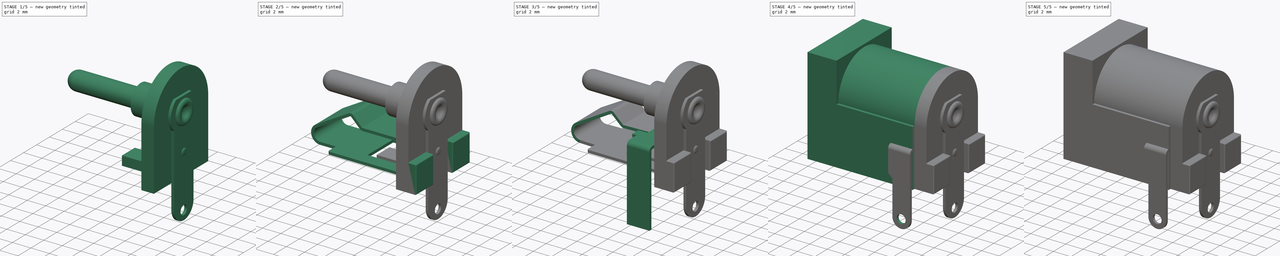
[diagram: build sequence overview — one tinted view per stage of 5, left to right]
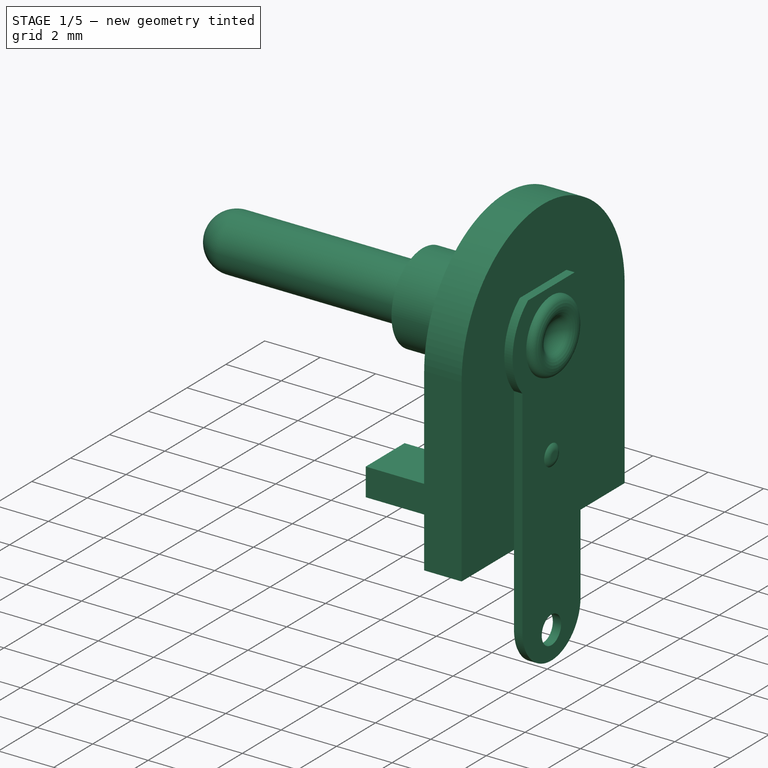
[diagram: stage 1 of 5 — iso view after this stage's code; geometry added in this stage tinted green]
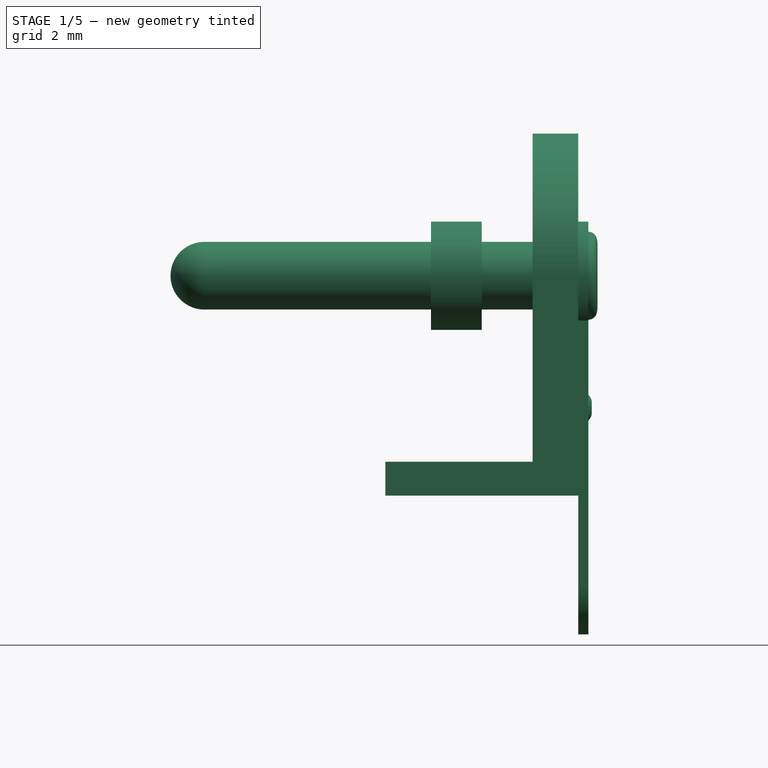
[diagram: stage 1 of 5 — front view after this stage's code; geometry added in this stage tinted green]
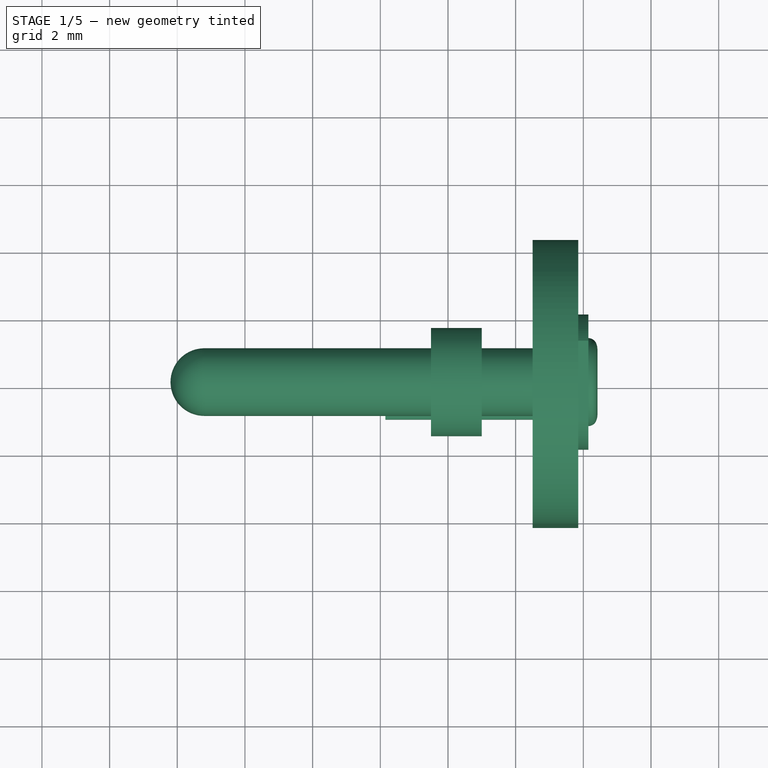
[diagram: stage 1 of 5 — top view after this stage's code; geometry added in this stage tinted green]
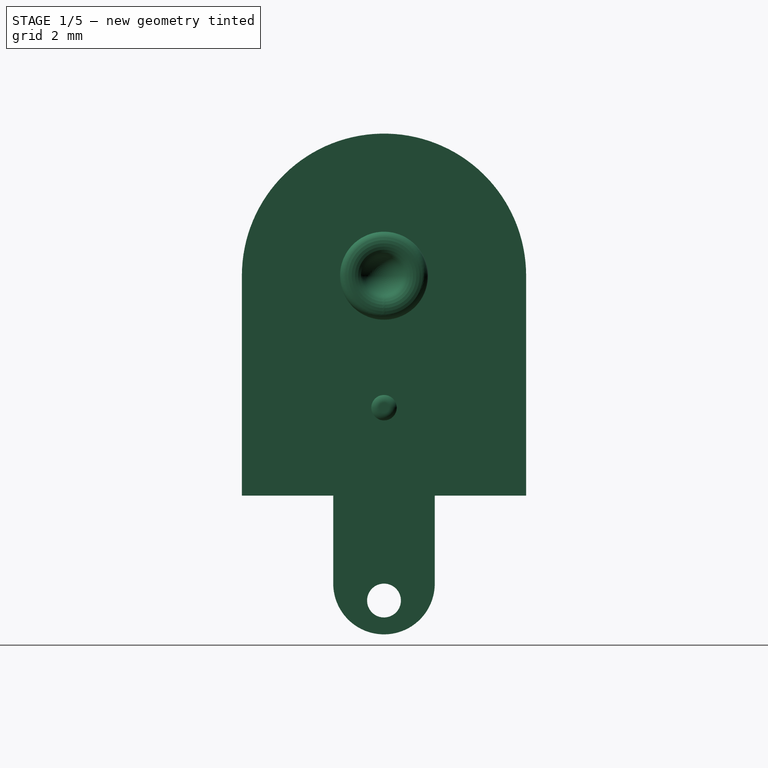
[diagram: stage 1 of 5 — right view after this stage's code; geometry added in this stage tinted green]
FCSTD DOCUMENT  (FreeCAD 0.20R29603 (Git))
Label: DC_Power_Jack_PCB_Mounted_2.1mm
License: All rights reserved
LicenseURL: http://en.wikipedia.org/wiki/All_rights_reserved
objects: Sketcher::SketchObject×31, PartDesign::Pocket×10, PartDesign::Pad×9, PartDesign::Body×6, App::Part×2, App::Annotation×2, PartDesign::Revolution×2, Image::ImagePlane×1, PartDesign::Groove×1, PartDesign::FeaturePython×1, PartDesign::SubtractivePipe×1, PartDesign::Mirrored×1, PartDesign::Fillet×1, App::DocumentObjectGroup×1
note: 87 computed .brp shape members not serialized (recipe doc carries the construction recipe); baked Part::Feature solids carry a one-line shape summary decoded from their .brp

FEATURE [PartDesign::Body] Body009  label="Plastic_Body_1of2"
  Group = -> [Sketch024,Sketch025,Pad009,Pocket006,Sketch031,Groove,Sketch032,Pocket007,Sketch034,Pocket008,Sketch035,Pocket009,Sketch036,Pocket010,Sketch037,Pocket011,Sketch038,Pocket012]
  Origin = -> Origin019
  Placement = pos=(0,0,-0.5) rot=(0,0,1;0rad)
  Tip = -> Pocket012
FEATURE [Sketcher::SketchObject] Sketch039
  AttachmentOffset = pos=(0,0,-1.5) rot=(0,0,1;0rad)
  FullyConstrained = true
  MapMode = 5
  Placement = pos=(-1.5,3e-16,-3e-16) rot=(0.57735,0.57735,0.57735;2.0944rad)
  Support = -> [YZ_Plane021]
  sketch-geometry (5):
    g0: ArcOfCircle CenterX=0 CenterY=7 CenterZ=0 NormalX=0 NormalY=0 NormalZ=1 AngleXU=0 Radius=4.2 StartAngle=0 EndAngle=3.14159
    g1: LineSegment StartX=-4.2 StartY=7 StartZ=0 EndX=-4.2 EndY=0.5 EndZ=0
    g2: LineSegment StartX=4.2 StartY=0.5 StartZ=0 EndX=4.2 EndY=7 EndZ=0
    g3: LineSegment StartX=-4.2 StartY=0.5 StartZ=0 EndX=4.2 EndY=0.5 EndZ=0
    g4: Circle CenterX=0 CenterY=7 CenterZ=0 NormalX=0 NormalY=0 NormalZ=1 AngleXU=0 Radius=1
  constraints (13):
    c: Tangent(g0,g1) = -1.5708
    c: Tangent(g2,g0) = -1.5708
    c: PointOnObject(g0,g-2)
    c: Coincident(g3,g1)
    c: Coincident(g3,g2)
    c: Horizontal(g3)
    c: Vertical(g1)
    c: Vertical(g2)
    c: DistanceY(g2) = 0.5
    c: DistanceX(g0,g0) = 8.4
    c: DistanceY(g2,g0) = 6.5
    c: Coincident(g4,g0)
    c: Diameter(g4) = 2
FEATURE [PartDesign::Pad] Pad010
  Direction = (1,-2e-16,3e-16)
  Length = 1.35
  Length2 = 10
  Placement = pos=(0,0,0) rot=(0.57735,0.57735,0.57735;2.0944rad)
  Profile = -> Sketch039
  ReferenceAxis = -> Sketch039 [N_Axis]
  Type = 0
FEATURE [Sketcher::SketchObject] Sketch040
  FullyConstrained = true
  MapMode = 5
  Placement = pos=(-0.15,0,0) rot=(0.57735,0.57735,0.57735;2.0944rad)
  Support = -> [Pad010]
  sketch-geometry (8):
    g0: LineSegment StartX=-4.2 StartY=3.5 StartZ=0 EndX=-1.5 EndY=3.5 EndZ=0
    g1: LineSegment StartX=-1.5 StartY=3.5 StartZ=0 EndX=-1.5 EndY=0.5 EndZ=0
    g2: LineSegment StartX=-1.5 StartY=0.5 StartZ=0 EndX=-4.2 EndY=0.5 EndZ=0
    g3: LineSegment StartX=-4.2 StartY=0.5 StartZ=0 EndX=-4.2 EndY=3.5 EndZ=0
    g4: LineSegment StartX=1.5 StartY=3.5 StartZ=0 EndX=4.2 EndY=3.5 EndZ=0
    g5: LineSegment StartX=4.2 StartY=3.5 StartZ=0 EndX=4.2 EndY=0.5 EndZ=0
    g6: LineSegment StartX=4.2 StartY=0.5 StartZ=0 EndX=1.5 EndY=0.5 EndZ=0
    g7: LineSegment StartX=1.5 StartY=0.5 StartZ=0 EndX=1.5 EndY=3.5 EndZ=0
  constraints (24):
    c: Coincident(g0,g1)
    c: Coincident(g1,g2)
    c: Coincident(g2,g3)
    c: Coincident(g3,g0)
    c: Horizontal(g0)
    c: Horizontal(g2)
    c: Vertical(g1)
    c: Vertical(g3)
    c: Coincident(g4,g5)
    c: Coincident(g5,g6)
    c: Coincident(g6,g7)
    c: Coincident(g7,g4)
    c: Horizontal(g4)
    c: Horizontal(g6)
    c: Vertical(g5)
    c: Vertical(g7)
    c: Equal(g2,g6)
    c: Equal(g1,g7)
    c: Symmetric(g1,g6,g-2)
    c: DistanceX(g0,g0) = 2.7
    c: DistanceY(g3,g3) = 3
    c: DistanceX(g1,g6) = 3
    c: DistanceY(g-1,g6) = 0.5
    c: DistanceX(g2,g5) = 8.4
FEATURE [Sketcher::SketchObject] Sketch041
  AttachmentOffset = pos=(0,0,-1.5) rot=(0,0,1;0rad)
  FullyConstrained = true
  MapMode = 5
  Placement = pos=(-1.5,3e-16,-3e-16) rot=(0.57735,0.57735,0.57735;2.0944rad)
  Support = -> [YZ_Plane021]
  sketch-geometry (4):
    g0: LineSegment StartX=-1 StartY=1.5 StartZ=0 EndX=1 EndY=1.5 EndZ=0
    g1: LineSegment StartX=1 StartY=1.5 StartZ=0 EndX=1 EndY=0.5 EndZ=0
    g2: LineSegment StartX=1 StartY=0.5 StartZ=0 EndX=-1 EndY=0.5 EndZ=0
    g3: LineSegment StartX=-1 StartY=0.5 StartZ=0 EndX=-1 EndY=1.5 EndZ=0
  constraints (11):
    c: Coincident(g0,g1)
    c: Coincident(g1,g2)
    c: Coincident(g2,g3)
    c: Coincident(g3,g0)
    c: Horizontal(g0)
    c: Vertical(g1)
    c: Vertical(g3)
    c: DistanceY(g1) = 0.5
    c: Symmetric(g2,g1,g-2)
    c: DistanceY(g3,g3) = 1
    c: DistanceX(g0,g0) = 2
FEATURE [PartDesign::Pad] Pad014
  BaseFeature = -> Pad010
  Direction = (1,-2e-16,3e-16)
  Length = 4.35
  Length2 = 10
  Placement = pos=(0,0,0) rot=(0.57735,0.57735,0.57735;2.0944rad)
  Profile = -> Sketch041
  ReferenceAxis = -> Sketch041 [N_Axis]
  Reversed = true
  Type = 0
FEATURE [Sketcher::SketchObject] Sketch053
  FullyConstrained = true
  MapMode = 5
  Placement = pos=(0,0,0) rot=(0.57735,0.57735,0.57735;2.0944rad)
  Support = -> [YZ_Plane025]
  sketch-geometry (9):
    g0: ArcOfCircle CenterX=0 CenterY=7 CenterZ=0 NormalX=0 NormalY=0 NormalZ=1 AngleXU=0 Radius=2 StartAngle=5.56045 EndAngle=7.21048
    g1: ArcOfCircle CenterX=0 CenterY=-2.1 CenterZ=0 NormalX=0 NormalY=0 NormalZ=1 AngleXU=0 Radius=1.5 StartAngle=3.14159 EndAngle=6.28319
    g2: LineSegment StartX=-1.5 StartY=5.67712 StartZ=0 EndX=-1.5 EndY=-2.1 EndZ=0
    g3: LineSegment StartX=1.5 StartY=-2.1 StartZ=0 EndX=1.5 EndY=5.67712 EndZ=0
    g4: LineSegment StartX=-1.2 StartY=8.6 StartZ=0 EndX=1.2 EndY=8.6 EndZ=0
    g5: ArcOfCircle CenterX=0 CenterY=7 CenterZ=0 NormalX=0 NormalY=0 NormalZ=1 AngleXU=0 Radius=2 StartAngle=2.2143 EndAngle=3.86433
    g6: LineSegment StartX=-1.5 StartY=-3.6 StartZ=0 EndX=1.5 EndY=-3.6 EndZ=0
    g7: Circle CenterX=0 CenterY=-2.6 CenterZ=0 NormalX=0 NormalY=0 NormalZ=1 AngleXU=0 Radius=0.5
    g8: Circle CenterX=0 CenterY=7 CenterZ=0 NormalX=0 NormalY=0 NormalZ=1 AngleXU=0 Radius=1
  constraints (27):
    c: PointOnObject(g0,g-2)
    c: Tangent(g2,g1) = -1.5708
    c: Tangent(g1,g3) = -1.5708
    c: PointOnObject(g1,g-2)
    c: Coincident(g5,g2)
    c: Coincident(g3,g0)
    c: Vertical(g2)
    c: Vertical(g3)
    c: Horizontal(g4)
    c: Equal(g0,g5)
    c: Coincident(g0,g4)
    c: Coincident(g5,g4)
    c: Coincident(g0,g5)
    c: Horizontal(g6)
    c: Tangent(g6,g1)
    c: Vertical(g1,g6)
    c: Vertical(g1,g6)
    c: DistanceY(g6,g-1) = 3.6
    c: DistanceX(g6,g6) = 3
    c: DistanceY(g-1,g0) = 7
    c: Radius(g0) = 2
    c: DistanceY(g0,g0) = 1.6
    c: PointOnObject(g7,g-2)
    c: DistanceY(g7,g-1) = 2.6
    c: Diameter(g7) = 1
    c: Coincident(g8,g0)
    c: Diameter(g8) = 2
FEATURE [PartDesign::Pad] Pad017
  Direction = (1,-2e-16,3e-16)
  Length = 0.3
  Length2 = 10
  Midplane = true
  Placement = pos=(0,0,0) rot=(0.57735,0.57735,0.57735;2.0944rad)
  Profile = -> Sketch053
  ReferenceAxis = -> Sketch053 [N_Axis]
  Type = 0
FEATURE [PartDesign::Body] Body010  label="Plastic_Body_2of2"
  Group = -> [Sketch039,Pad010,Sketch040,Sketch041,Pad014,Pad015,Sketch055,Pocket015,Fillet]
  Origin = -> Origin021
  Placement = pos=(0,0,-0.5) rot=(0,0,1;0rad)
  Tip = -> Fillet
FEATURE [Sketcher::SketchObject] Sketch013  label="F_Fab_0.1"
  FullyConstrained = true
  sketch-geometry (6):
    g0: LineSegment StartX=-13.5 StartY=-4.5 StartZ=0 EndX=-13.5 EndY=4.5 EndZ=0
    g1: LineSegment StartX=-10.2 StartY=4.5 StartZ=0 EndX=-10.2 EndY=-4.5 EndZ=0
    g2: LineSegment StartX=-13.5 StartY=4.5 StartZ=0 EndX=0 EndY=4.5 EndZ=0
    g3: LineSegment StartX=0 StartY=4.5 StartZ=0 EndX=0.7 EndY=3.8 EndZ=0
    g4: LineSegment StartX=0.7 StartY=3.8 StartZ=0 EndX=0.7 EndY=-4.5 EndZ=0
    g5: LineSegment StartX=0.7 StartY=-4.5 StartZ=0 EndX=-13.5 EndY=-4.5 EndZ=0
  constraints (18):
    c: Coincident(g5,g0)
    c: Coincident(g0,g2)
    c: Vertical(g1)
    c: Horizontal(g2)
    c: PointOnObject(g1,g2)
    c: DistanceY(g0,g0) = 9
    c: Symmetric(g0,g0,g-1)
    c: DistanceX(g0,g1) = 3.3
    c: DistanceX(g0,g-1) = 13.5
    c: Coincident(g3,g2)
    c: Coincident(g4,g3)
    c: Vertical(g4)
    c: Angle(g2,g3) = 2.35619
    c: DistanceX(g0,g3) = 14.2
    c: DistanceX(g2,g3) = 0.7
    c: Horizontal(g5)
    c: PointOnObject(g1,g5)
    c: Coincident(g4,g5)
FEATURE [Sketcher::SketchObject] Sketch014  label="F_CrtYd_0.05"
  FullyConstrained = true
  sketch-geometry (12):
    g0: LineSegment StartX=-13.88 StartY=5.08 StartZ=0 EndX=1.28 EndY=5.08 EndZ=0
    g1: LineSegment StartX=1.08 StartY=-4.88 StartZ=0 EndX=-0.5 EndY=-4.88 EndZ=0
    g2: LineSegment StartX=-13.88 StartY=-4.88 StartZ=0 EndX=-13.88 EndY=5.08 EndZ=0
    g3: LineSegment StartX=-0.5 StartY=-4.88 StartZ=0 EndX=-0.5 EndY=-6.55 EndZ=0
    g4: LineSegment StartX=-0.5 StartY=-6.55 StartZ=0 EndX=-4.5 EndY=-6.55 EndZ=0
    g5: LineSegment StartX=-4.5 StartY=-6.55 StartZ=0 EndX=-4.5 EndY=-4.88 EndZ=0
    g6: LineSegment StartX=-4.5 StartY=-4.88 StartZ=0 EndX=-13.88 EndY=-4.88 EndZ=0
    g7: LineSegment StartX=1.75 StartY=2.5 StartZ=0 EndX=1.75 EndY=-2.5 EndZ=0
    g8: LineSegment StartX=1.28 StartY=5.08 StartZ=0 EndX=1.28 EndY=2.5 EndZ=0
    g9: LineSegment StartX=1.28 StartY=2.5 StartZ=0 EndX=1.75 EndY=2.5 EndZ=0
    g10: LineSegment StartX=1.75 StartY=-2.5 StartZ=0 EndX=1.08 EndY=-2.5 EndZ=0
    g11: LineSegment StartX=1.08 StartY=-2.5 StartZ=0 EndX=1.08 EndY=-4.88 EndZ=0
  constraints (36):
    c: Horizontal(g0)
    c: Horizontal(g1)
    c: DistanceY(g2,g2) = 9.96
    c: Horizontal(g4)
    c: Vertical(g3)
    c: Vertical(g5)
    c: DistanceX(g3,g-1) = 0.5
    c: DistanceX(g4,g4) = 4
    c: DistanceY(g3,g11) = 1.67
    c: Horizontal(g6)
    c: DistanceX(g0,g-1) = 13.88
    c: DistanceX(g-1,g0) = 1.28
    c: Horizontal(g9)
    c: Horizontal(g10)
    c: Vertical(g11)
    c: DistanceX(g9,g9) = 0.47
    c: Vertical(g2)
    c: Vertical(g7)
    c: Vertical(g8)
    c: DistanceY(g4,g2) = 1.67
    c: DistanceY(g-1,g0) = 5.08
    c: DistanceY(g-1,g7) = 2.5
    c: DistanceY(g7,g-1) = 2.5
    c: DistanceX(g1,g1) = 1.58
    c: Coincident(g2,g0)
    c: Coincident(g4,g5)
    c: Coincident(g5,g6)
    c: Coincident(g1,g11)
    c: Coincident(g10,g11)
    c: Coincident(g7,g10)
    c: Coincident(g7,g9)
    c: Coincident(g8,g9)
    c: Coincident(g0,g8)
    c: Coincident(g2,g6)
    c: Coincident(g3,g4)
    c: Coincident(g1,g3)
FEATURE [App::Annotation] Text  label="Ref#_1.0mm"
  LabelText = REF**
  Position = (-5,7,0)
FEATURE [App::Annotation] Text001  label="Value#_0.8mm"
  LabelText = Value 
  Position = (-6,-9.5,0)
FEATURE [Sketcher::SketchObject] Sketch080
  FullyConstrained = true
  MapMode = 5
  Placement = pos=(0,0,0) rot=(1,0,0;1.5708rad)
  Support = -> [XZ_Plane025]
  sketch-geometry (5):
    g0: ArcOfCircle CenterX=-0.055 CenterY=3.25 CenterZ=0 NormalX=0 NormalY=0 NormalZ=1 AngleXU=0 Radius=0.305 StartAngle=0 EndAngle=1.38948
    g1: LineSegment StartX=-1.8491e-11 StartY=3.55 StartZ=0 EndX=0 EndY=3.1 EndZ=0
    g2: LineSegment StartX=0 StartY=3.1 StartZ=0 EndX=0.25 EndY=3.1 EndZ=0
    g3: LineSegment StartX=0.25 StartY=3.1 StartZ=0 EndX=0.25 EndY=3.25 EndZ=0
    g4: LineSegment StartX=0 StartY=3.1 StartZ=0 EndX=0.5 EndY=3.1 EndZ=0
  constraints (15):
    c: PointOnObject(g0,g-2)
    c: Coincident(g1,g0)
    c: PointOnObject(g1,g-2)
    c: Coincident(g2,g1)
    c: Horizontal(g2)
    c: Coincident(g3,g2)
    c: Vertical(g3)
    c: DistanceY(g1) = 3.1
    c: DistanceX(g2,g2) = 0.25
    c: DistanceY(g1,g0) = 0.45
    c: DistanceY(g3,g3) = 0.15
    c: Coincident(g4,g1)
    c: PointOnObject(g2,g4)
    c: DistanceX(g4,g4) = 0.5
    c: Tangent(g0,g3) = -1.5708
FEATURE [PartDesign::Revolution] Revolution001
  Angle = 360
  Axis = (0.5,0,0)
  Base = (0,-7e-16,3.1)
  BaseFeature = -> Pad017
  Placement = pos=(0,0,0) rot=(0.57735,0.57735,0.57735;2.0944rad)
  Profile = -> Sketch080
  ReferenceAxis = -> Sketch080 [Axis0]
  Refine = true
FEATURE [PartDesign::Body] Body014  label="PIN_01"
  Group = -> [Sketch053,Pad017,Sketch080,Revolution001]
  Origin = -> Origin025
  Placement = pos=(0,0,-0.5) rot=(0,0,1;0rad)
  Tip = -> Revolution001
FEATURE [Sketcher::SketchObject] Sketch082
  FullyConstrained = true
  MapMode = 5
  Placement = pos=(0,0,0) rot=(1,0,0;1.5708rad)
  Support = -> [XZ_Plane032]
  sketch-geometry (12):
    g0: LineSegment StartX=-12.2 StartY=7 StartZ=0 EndX=0 EndY=7 EndZ=0
    g1: LineSegment StartX=-4.5 StartY=6 StartZ=0 EndX=-4.5 EndY=5.4 EndZ=0
    g2: LineSegment StartX=-4.5 StartY=5.4 StartZ=0 EndX=-3 EndY=5.4 EndZ=0
    g3: LineSegment StartX=-3 StartY=5.4 StartZ=0 EndX=-3 EndY=6 EndZ=0
    g4: LineSegment StartX=-3 StartY=6 StartZ=0 EndX=0.15 EndY=6 EndZ=0
    g5: LineSegment StartX=0.15 StartY=6 StartZ=0 EndX=0.15 EndY=5.7 EndZ=0
    g6: ArcOfCircle CenterX=0.15 CenterY=5.95 CenterZ=0 NormalX=0 NormalY=0 NormalZ=1 AngleXU=0 Radius=0.25 StartAngle=4.71239 EndAngle=5.89565
    g7: ArcOfCircle CenterX=-0.0814612 CenterY=6.04448 CenterZ=0 NormalX=0 NormalY=0 NormalZ=1 AngleXU=0 Radius=0.5 StartAngle=5.89565 EndAngle=7.10888
    g8: ArcOfCircle CenterX=0.8 CenterY=7 CenterZ=0 NormalX=0 NormalY=0 NormalZ=1 AngleXU=0 Radius=0.8 StartAngle=3.14159 EndAngle=3.96729
    g9: ArcOfCircle CenterX=-11.2 CenterY=7 CenterZ=0 NormalX=0 NormalY=0 NormalZ=1 AngleXU=0 Radius=1 StartAngle=3.14159 EndAngle=4.71239
    g10: LineSegment StartX=-4.5 StartY=6 StartZ=0 EndX=-11.2 EndY=6 EndZ=0
    g11: LineSegment StartX=0 StartY=7 StartZ=0 EndX=5 EndY=7 EndZ=0
  constraints (37):
    c: Horizontal(g0)
    c: Vertical(g1)
    c: Coincident(g2,g1)
    c: Horizontal(g2)
    c: Coincident(g3,g2)
    c: Vertical(g3)
    c: Coincident(g4,g3)
    c: Horizontal(g4)
    c: Coincident(g5,g4)
    c: Vertical(g5)
    c: Coincident(g6,g5)
    c: Coincident(g8,g0)
    c: Tangent(g7,g6) = -1.5708
    c: Tangent(g8,g7) = 1.5708
    c: Perpendicular(g8,g0)
    c: PointOnObject(g6,g5)
    c: Coincident(g9,g0)
    c: Coincident(g10,g1)
    c: Horizontal(g10)
    c: Horizontal(g1,g3)
    c: PointOnObject(g9,g0)
    c: Tangent(g10,g9) = 1.5708
    c: DistanceX(g0,g0) = 12.2
    c: DistanceY(g9,g0) = 1
    c: DistanceX(g0,g1) = 7.7
    c: DistanceX(g2,g2) = 1.5
    c: DistanceX(g2,g5) = 3.15
    c: DistanceY(g0) = 7
    c: DistanceY(g2,g0) = 1.6
    c: PointOnObject(g0,g-2)
    c: Radius(g6) = 0.25
    c: Radius(g8) = 0.8
    c: Radius(g7) = 0.5
    c: DistanceY(g5,g0) = 1.3
    c: Coincident(g11,g0)
    c: Horizontal(g11)
    c: DistanceX(g11,g11) = 5
FEATURE [PartDesign::Revolution] Revolution002
  Angle = 360
  Axis = (5,0,0)
  Base = (0,-1.6e-15,7)
  Placement = pos=(0,0,0) rot=(1,0,0;1.5708rad)
  Profile = -> Sketch082
  ReferenceAxis = -> Sketch082 [Axis0]
  Refine = true
  Reversed = true
FEATURE [PartDesign::Body] Body019  label="Boner"
  Group = -> [Sketch082,Revolution002]
  Origin = -> Origin032
  Placement = pos=(0,0,-0.5) rot=(0,0,1;0rad)
  Tip = -> Revolution002
FEATURE [App::Part] Part001  label="DC Power Jack PCB Mounted 2.1mm"
  Group = -> [Body009,Body010,Body014,Body013,Body018,Body019]
  Origin = -> Origin029
FEATURE [Sketcher::SketchObject] Sketch084  label="Pads_TH_SMD"
  FullyConstrained = true
  sketch-geometry (24):
    g0: ArcOfCircle CenterX=-6 CenterY=1 CenterZ=0 NormalX=0 NormalY=0 NormalZ=1 AngleXU=0 Radius=0.4 StartAngle=0 EndAngle=3.14159
    g1: ArcOfCircle CenterX=-6 CenterY=-1 CenterZ=0 NormalX=0 NormalY=0 NormalZ=1 AngleXU=0 Radius=0.4 StartAngle=3.14159 EndAngle=6.28319
    g2: LineSegment StartX=-6.4 StartY=1 StartZ=0 EndX=-6.4 EndY=-1 EndZ=0
    g3: LineSegment StartX=-5.6 StartY=-1 StartZ=0 EndX=-5.6 EndY=1 EndZ=0
    g4: ArcOfCircle CenterX=0 CenterY=1.5 CenterZ=0 NormalX=0 NormalY=0 NormalZ=1 AngleXU=0 Radius=0.4 StartAngle=0 EndAngle=3.14159
    g5: ArcOfCircle CenterX=0 CenterY=-1.5 CenterZ=0 NormalX=0 NormalY=0 NormalZ=1 AngleXU=0 Radius=0.4 StartAngle=3.14159 EndAngle=6.28319
    g6: LineSegment StartX=-0.4 StartY=1.5 StartZ=0 EndX=-0.4 EndY=-1.5 EndZ=0
    g7: LineSegment StartX=0.4 StartY=-1.5 StartZ=0 EndX=0.4 EndY=1.5 EndZ=0
    g8: LineSegment StartX=-1.5 StartY=2.25 StartZ=0 EndX=1.5 EndY=2.25 EndZ=0
    g9: LineSegment StartX=1.5 StartY=2.25 StartZ=0 EndX=1.5 EndY=-2.25 EndZ=0
    g10: LineSegment StartX=1.5 StartY=-2.25 StartZ=0 EndX=-1.5 EndY=-2.25 EndZ=0
    g11: LineSegment StartX=-1.5 StartY=-2.25 StartZ=0 EndX=-1.5 EndY=2.25 EndZ=0
    g12: ArcOfCircle CenterX=-3.5 CenterY=-4.8 CenterZ=0 NormalX=0 NormalY=0 NormalZ=1 AngleXU=0 Radius=0.4 StartAngle=1.5708 EndAngle=4.71239
    g13: ArcOfCircle CenterX=-1.5 CenterY=-4.8 CenterZ=0 NormalX=0 NormalY=0 NormalZ=1 AngleXU=0 Radius=0.4 StartAngle=4.71239 EndAngle=7.85398
    g14: LineSegment StartX=-3.5 StartY=-5.2 StartZ=0 EndX=-1.5 EndY=-5.2 EndZ=0
    g15: LineSegment StartX=-1.5 StartY=-4.4 StartZ=0 EndX=-3.5 EndY=-4.4 EndZ=0
    g16: LineSegment StartX=-4.25 StartY=-3.3 StartZ=0 EndX=-0.75 EndY=-3.3 EndZ=0
    g17: LineSegment StartX=-0.75 StartY=-3.3 StartZ=0 EndX=-0.75 EndY=-6.3 EndZ=0
    g18: LineSegment StartX=-0.75 StartY=-6.3 StartZ=0 EndX=-4.25 EndY=-6.3 EndZ=0
    g19: LineSegment StartX=-4.25 StartY=-6.3 StartZ=0 EndX=-4.25 EndY=-3.3 EndZ=0
    g20: LineSegment StartX=-7.5 StartY=1.75 StartZ=0 EndX=-4.5 EndY=1.75 EndZ=0
    g21: LineSegment StartX=-4.5 StartY=1.75 StartZ=0 EndX=-4.5 EndY=-1.75 EndZ=0
    g22: LineSegment StartX=-4.5 StartY=-1.75 StartZ=0 EndX=-7.5 EndY=-1.75 EndZ=0
    g23: LineSegment StartX=-7.5 StartY=-1.75 StartZ=0 EndX=-7.5 EndY=1.75 EndZ=0
  constraints (62):
    c: Tangent(g0,g2) = -1.5708
    c: Tangent(g2,g1) = -1.5708
    c: Tangent(g1,g3) = -1.5708
    c: Tangent(g3,g0) = -1.5708
    c: Equal(g0,g1)
    c: Symmetric(g0,g1,g-1)
    c: DistanceX(g0,g-1) = 6
    c: DistanceY(g1,g0) = 2
    c: Radius(g0) = 0.4
    c: Tangent(g4,g6) = -1.5708
    c: Tangent(g6,g5) = -1.5708
    c: Tangent(g5,g7) = -1.5708
    c: Tangent(g7,g4) = -1.5708
    c: Equal(g4,g5)
    c: PointOnObject(g4,g-2)
    c: Symmetric(g4,g5,g-1)
    c: DistanceY(g5,g4) = 3
    c: Radius(g4) = 0.4
    c: Coincident(g8,g9)
    c: Coincident(g9,g10)
    c: Coincident(g10,g11)
    c: Coincident(g11,g8)
    c: Horizontal(g8)
    c: Horizontal(g10)
    c: Vertical(g9)
    c: Vertical(g11)
    c: Symmetric(g8,g9,g-1)
    c: DistanceX(g10,g10) = 3
    c: DistanceY(g9,g9) = 4.5
    c: Tangent(g12,g14) = -1.5708
    c: Tangent(g14,g13) = -1.5708
    c: Tangent(g13,g15) = -1.5708
    c: Tangent(g15,g12) = -1.5708
    c: Equal(g12,g13)
    c: Horizontal(g14)
    c: DistanceX(g12,g13) = 2
    c: DistanceY(g13,g-1) = 4.8
    c: Radius(g12) = 0.4
    c: DistanceX(g13,g5) = 1.5
    c: Coincident(g16,g17)
    c: Coincident(g17,g18)
    c: Coincident(g18,g19)
    c: Coincident(g19,g16)
    c: Horizontal(g16)
    c: Horizontal(g18)
    c: Vertical(g17)
    c: Vertical(g19)
    c: DistanceX(g18,g18) = 3.5
    c: DistanceY(g19,g19) = 3
    c: DistanceX(g17) = -0.75
    c: DistanceY(g17) = -6.3
    c: Coincident(g20,g21)
    c: Coincident(g21,g22)
    c: Coincident(g22,g23)
    c: Coincident(g23,g20)
    c: Horizontal(g20)
    c: Horizontal(g22)
    c: Vertical(g21)
    c: DistanceY(g23,g23) = 3.5
    c: DistanceX(g22,g22) = 3
    c: Symmetric(g20,g22,g-1)
    c: DistanceX(g20,g-1) = 4.5
FEATURE [Sketcher::SketchObject] Sketch083  label="F_Silks_0.16"
  ExternalGeometry = -> [Sketch084]
  FullyConstrained = true
  sketch-geometry (11):
    g0: LineSegment StartX=-13.63 StartY=-4.63 StartZ=0 EndX=-13.63 EndY=4.63 EndZ=0
    g1: LineSegment StartX=-10.2 StartY=4.63 StartZ=0 EndX=-10.2 EndY=-4.63 EndZ=0
    g2: LineSegment StartX=-13.63 StartY=4.63 StartZ=0 EndX=0.83 EndY=4.63 EndZ=0
    g3: LineSegment StartX=0.83 StartY=-2.5 StartZ=0 EndX=0.83 EndY=-4.63 EndZ=0
    g4: LineSegment StartX=0.83 StartY=-4.63 StartZ=0 EndX=-0.5 EndY=-4.63 EndZ=0
    g5: LineSegment StartX=-4.5 StartY=-4.63 StartZ=0 EndX=-13.63 EndY=-4.63 EndZ=0
    g6: LineSegment StartX=0.83 StartY=4.63 StartZ=0 EndX=0.83 EndY=2.5 EndZ=0
    g7: LineSegment StartX=0.03 StartY=4.83 StartZ=0 EndX=1.03 EndY=4.83 EndZ=0
    g8: LineSegment StartX=1.03 StartY=4.83 StartZ=0 EndX=1.03 EndY=3.83 EndZ=0
    g9: LineSegment StartX=0.03 StartY=4.83 StartZ=0 EndX=0.03 EndY=4.63 EndZ=0
    g10: LineSegment StartX=1.03 StartY=3.83 StartZ=0 EndX=0.83 EndY=3.83 EndZ=0
  constraints (36):
    c: Coincident(g0,g2)
    c: Vertical(g1)
    c: Symmetric(g2,g0,g-1)
    c: DistanceY(g0,g0) = 9.26
    c: Horizontal(g2)
    c: PointOnObject(g1,g2)
    c: DistanceX(g0,g1) = 3.43
    c: Coincident(g4,g3)
    c: Coincident(g5,g0)
    c: DistanceY(g-1,g6) = 2.5
    c: DistanceY(g3,g-1) = 2.5
    c: Horizontal(g7)
    c: Coincident(g8,g7)
    c: Vertical(g8)
    c: DistanceX(g7,g7) = 1
    c: Equal(g7,g8)
    c: PointOnObject(g1,g5)
    c: Horizontal(g4)
    c: Vertical(g3)
    c: Vertical(g6,g3)
    c: Vertical(g6)
    c: DistanceX(g0,g-1) = 13.63
    c: Horizontal(g5)
    c: DistanceX(g5,g-1) = 4.5
    c: DistanceX(g4,g-1) = 0.5
    c: DistanceY(g3,g-1) = 4.63
    c: DistanceX(g-1,g3) = 0.83
    c: Coincident(g6,g2)
    c: Coincident(g9,g7)
    c: PointOnObject(g9,g2)
    c: Vertical(g9)
    c: Coincident(g10,g8)
    c: PointOnObject(g10,g6)
    c: Horizontal(g10)
    c: Equal(g9,g10)
    c: DistanceX(g10,g10) = 0.2
FEATURE [App::DocumentObjectGroup] Group  label="DC Power Jack PCB Footprint 2.1mm"
  Group = -> [Text,Text001,Sketch013,Sketch014,Sketch083,Sketch084]
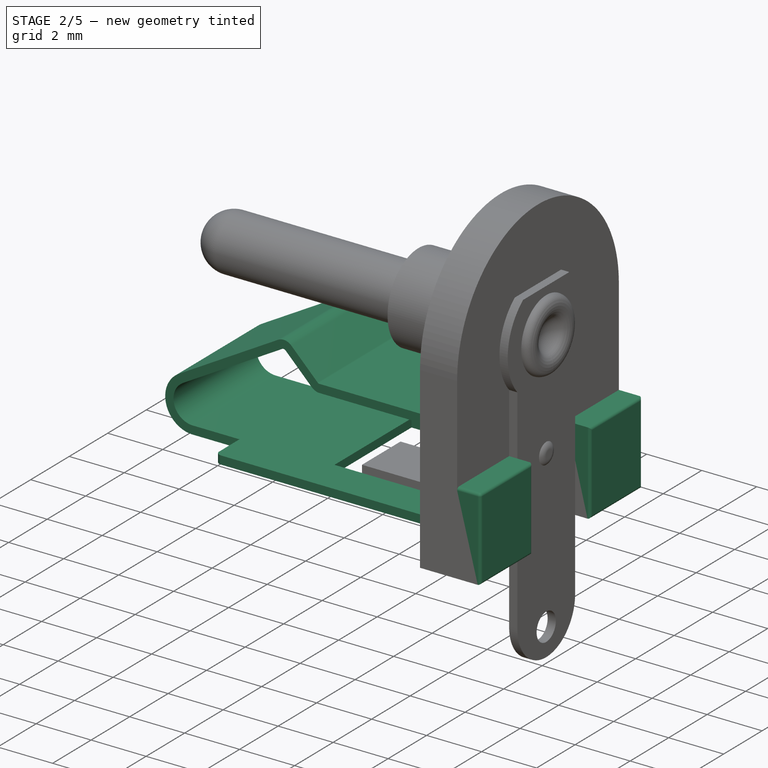
[diagram: stage 2 of 5 — iso view after this stage's code; geometry added in this stage tinted green]
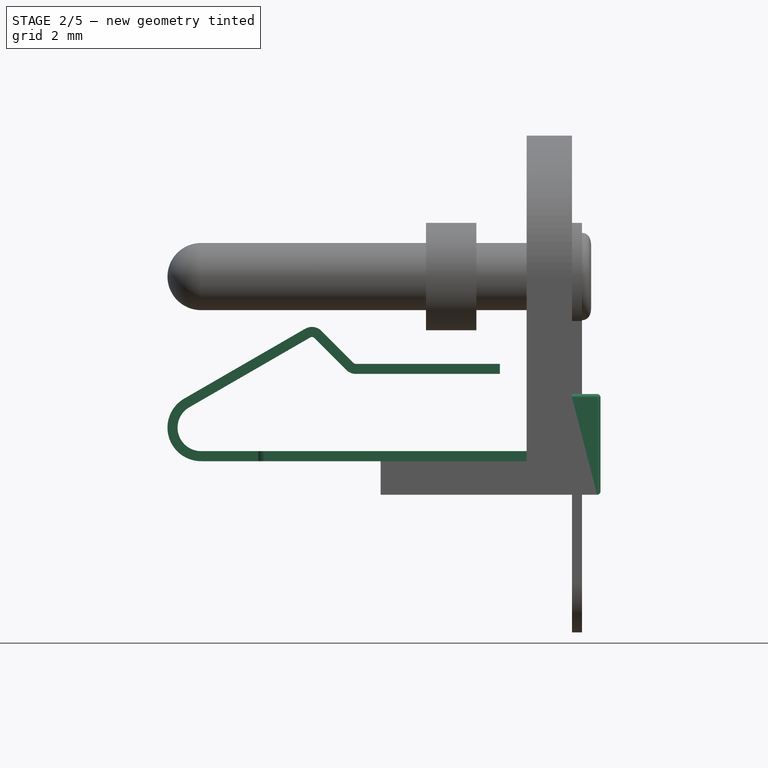
[diagram: stage 2 of 5 — front view after this stage's code; geometry added in this stage tinted green]
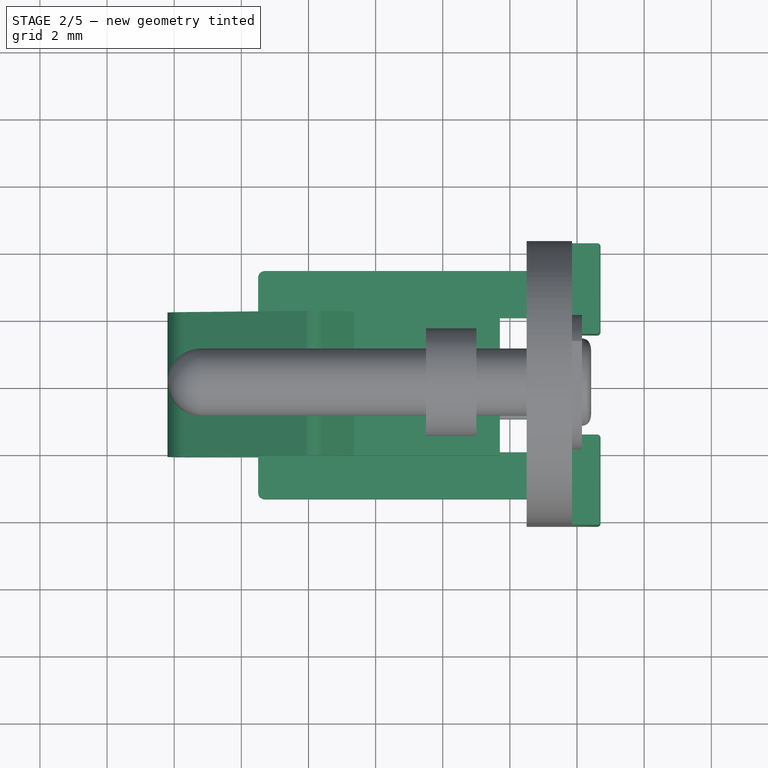
[diagram: stage 2 of 5 — top view after this stage's code; geometry added in this stage tinted green]
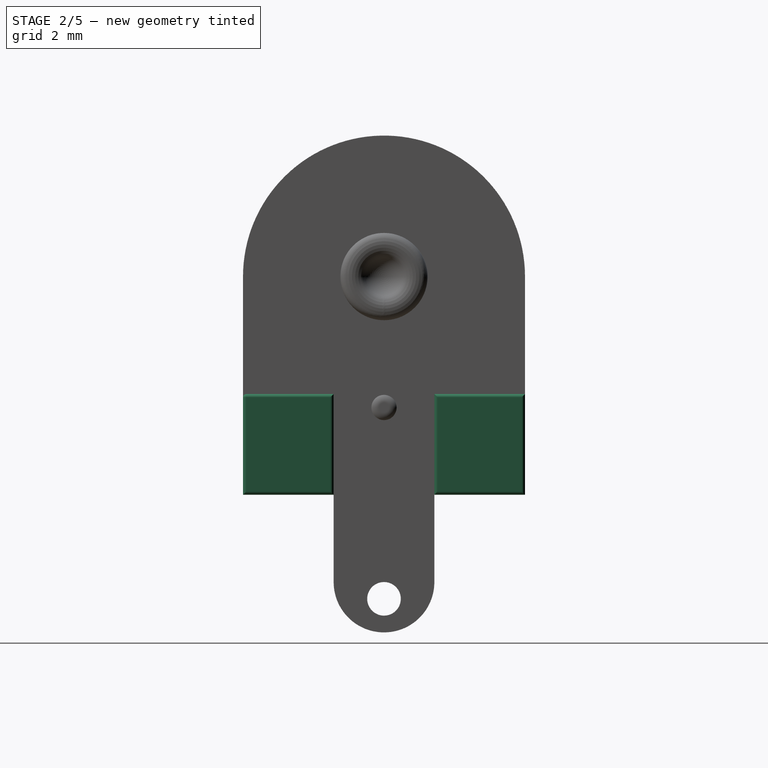
[diagram: stage 2 of 5 — right view after this stage's code; geometry added in this stage tinted green]
FEATURE [PartDesign::Pad] Pad015
  BaseFeature = -> Pad014
  Direction = (1,-2e-16,2e-16)
  Length = 0.85
  Length2 = 10
  Placement = pos=(0,0,0) rot=(0.57735,0.57735,0.57735;2.0944rad)
  Profile = -> Sketch040
  ReferenceAxis = -> Sketch040 [N_Axis]
  Refine = true
  Type = 0
FEATURE [Sketcher::SketchObject] Sketch055
  AttachmentOffset = pos=(0,0,-0.5) rot=(0,0,1;0rad)
  FullyConstrained = true
  MapMode = 5
  Placement = pos=(-0.5,1e-16,-1e-16) rot=(0.57735,0.57735,0.57735;2.0944rad)
  Support = -> [YZ_Plane021]
  sketch-geometry (6):
    g0: LineSegment StartX=-2.5 StartY=4.7 StartZ=0 EndX=4 EndY=4.7 EndZ=0
    g1: LineSegment StartX=2.5 StartY=1.8 StartZ=0 EndX=-2.5 EndY=1.8 EndZ=0
    g2: LineSegment StartX=-2.5 StartY=1.8 StartZ=0 EndX=-2.5 EndY=4.7 EndZ=0
    g3: LineSegment StartX=4 StartY=4.7 StartZ=0 EndX=4 EndY=4.4 EndZ=0
    g4: LineSegment StartX=4 StartY=4.4 StartZ=0 EndX=2.5 EndY=4.4 EndZ=0
    g5: LineSegment StartX=2.5 StartY=4.4 StartZ=0 EndX=2.5 EndY=1.8 EndZ=0
  constraints (17):
    c: Coincident(g0,g3)
    c: Coincident(g5,g1)
    c: Coincident(g1,g2)
    c: Coincident(g2,g0)
    c: Horizontal(g0)
    c: Vertical(g2)
    c: Coincident(g3,g4)
    c: Vertical(g3)
    c: Coincident(g4,g5)
    c: Vertical(g5)
    c: Horizontal(g4)
    c: Symmetric(g1,g1,g-2)
    c: DistanceX(g1,g1) = 5
    c: DistanceX(g-1,g3) = 4
    c: DistanceY(g-1,g1) = 1.8
    c: DistanceY(g2,g2) = 2.9
    c: DistanceY(g3,g3) = 0.3
FEATURE [PartDesign::Pocket] Pocket015
  BaseFeature = -> Pad015
  Direction = (-1,2e-16,-3e-16)
  Length = 5
  Length2 = 5
  Placement = pos=(0,0,0) rot=(0.57735,0.57735,0.57735;2.0944rad)
  Profile = -> Sketch055
  ReferenceAxis = -> Sketch055 [N_Axis]
  Type = 1
FEATURE [PartDesign::Body] Body013  label="PIN_03"
  Group = -> [Sketch049,Pad016,Bend004,Sketch054,Pocket014]
  Origin = -> Origin024
  Placement = pos=(0,0,-0.5) rot=(0,0,1;0rad)
  Tip = -> Pocket014
FEATURE [Sketcher::SketchObject] Sketch074
  AttachmentOffset = pos=(0,0,1.5) rot=(0,0,1;0rad)
  FullyConstrained = true
  MapMode = 5
  Placement = pos=(0,0,1.5) rot=(0,0,1;0rad)
  Support = -> [XY_Plane031]
  sketch-geometry (14):
    g0: LineSegment StartX=-9.3 StartY=3.4 StartZ=0 EndX=-1.5 EndY=3.4 EndZ=0
    g1: LineSegment StartX=-1.5 StartY=3.4 StartZ=0 EndX=-1.5 EndY=2 EndZ=0
    g2: LineSegment StartX=-1.5 StartY=-3.4 StartZ=0 EndX=-9.3 EndY=-3.4 EndZ=0
    g3: LineSegment StartX=-9.5 StartY=-3.2 StartZ=0 EndX=-9.5 EndY=-2.15 EndZ=0
    g4: LineSegment StartX=-6.15 StartY=2 StartZ=0 EndX=-1.5 EndY=2 EndZ=0
    g5: LineSegment StartX=-1.5 StartY=-2 StartZ=0 EndX=-6.15 EndY=-2 EndZ=0
    g6: LineSegment StartX=-6.15 StartY=-2 StartZ=0 EndX=-6.15 EndY=2 EndZ=0
    g7: LineSegment StartX=-1.5 StartY=-2 StartZ=0 EndX=-1.5 EndY=-3.4 EndZ=0
    g8: ArcOfCircle CenterX=-9.3 CenterY=3.2 CenterZ=0 NormalX=0 NormalY=0 NormalZ=1 AngleXU=0 Radius=0.2 StartAngle=1.5708 EndAngle=3.14159
    g9: ArcOfCircle CenterX=-9.3 CenterY=-3.2 CenterZ=0 NormalX=0 NormalY=0 NormalZ=1 AngleXU=0 Radius=0.2 StartAngle=3.14159 EndAngle=4.71239
    g10: LineSegment StartX=-9.5 StartY=-2.15 StartZ=0 EndX=-10.5 EndY=-2.15 EndZ=0
    g11: LineSegment StartX=-10.5 StartY=-2.15 StartZ=0 EndX=-10.5 EndY=2.15 EndZ=0
    g12: LineSegment StartX=-10.5 StartY=2.15 StartZ=0 EndX=-9.5 EndY=2.15 EndZ=0
    g13: LineSegment StartX=-9.5 StartY=2.15 StartZ=0 EndX=-9.5 EndY=3.2 EndZ=0
  constraints (38):
    c: Coincident(g0,g1)
    c: Coincident(g7,g2)
    c: Horizontal(g0)
    c: Horizontal(g2)
    c: Vertical(g1)
    c: Coincident(g5,g6)
    c: Coincident(g6,g4)
    c: Horizontal(g4)
    c: Horizontal(g5)
    c: Vertical(g6)
    c: Coincident(g4,g1)
    c: Coincident(g5,g7)
    c: Vertical(g7)
    c: Tangent(g0,g8) = 1.5708
    c: Tangent(g2,g9) = 1.5708
    c: Tangent(g3,g9) = 1.5708
    c: DistanceY(g2,g0) = 6.8
    c: Equal(g7,g1)
    c: DistanceY(g5,g1) = 4
    c: DistanceX(g2,g-1) = 1.5
    c: Equal(g9,g8)
    c: Radius(g9) = 0.2
    c: Symmetric(g0,g2,g-1)
    c: DistanceX(g4,g0) = 4.65
    c: Vertical(g3)
    c: Horizontal(g10)
    c: Coincident(g11,g10)
    c: Coincident(g12,g11)
    c: Horizontal(g12)
    c: Coincident(g3,g10)
    c: Coincident(g13,g12)
    c: Symmetric(g11,g10,g-1)
    c: Vertical(g13)
    c: DistanceY(g11,g11) = 4.3
    c: DistanceX(g11,g8) = 1
    c: Tangent(g13,g8) = 1.5708
    c: Equal(g12,g10)
    c: DistanceX(g11,g0) = 9
FEATURE [PartDesign::Pad] Pad022
  Direction = (0,0,1)
  Length = 0.3
  Length2 = 10
  Profile = -> Sketch074
  ReferenceAxis = -> Sketch074 [N_Axis]
  Type = 0
FEATURE [Sketcher::SketchObject] Sketch073
  ExternalGeometry = -> [Sketch074]
  FullyConstrained = true
  MapMode = 5
  Placement = pos=(0,0,0) rot=(1,0,0;1.5708rad)
  Support = -> [XZ_Plane031]
  sketch-geometry (21):
    g0: LineSegment StartX=-6.58956 StartY=4.4 StartZ=0 EndX=-2.3 EndY=4.4 EndZ=0
    g1: LineSegment StartX=-6.58956 StartY=4.1 StartZ=0 EndX=-2.3 EndY=4.1 EndZ=0
    g2: LineSegment StartX=-2.3 StartY=4.1 StartZ=0 EndX=-2.3 EndY=4.4 EndZ=0
    g3: LineSegment StartX=-1.5 StartY=1.5 StartZ=0 EndX=-11.2 EndY=1.5 EndZ=0
    g4: LineSegment StartX=-11.2 StartY=1.8 StartZ=0 EndX=-1.5 EndY=1.8 EndZ=0
    g5: LineSegment StartX=-1.5 StartY=1.5 StartZ=0 EndX=-1.5 EndY=1.8 EndZ=0
    g6: LineSegment StartX=-7.61383 StartY=5.38284 StartZ=0 EndX=-6.66027 EndY=4.42929 EndZ=0
    g7: LineSegment StartX=-7.82596 StartY=5.17071 StartZ=0 EndX=-6.8724 EndY=4.21716 EndZ=0
    g8: LineSegment StartX=-7.94667 StartY=5.1866 StartZ=0 EndX=-11.55 EndY=3.10622 EndZ=0
    g9: LineSegment StartX=-11.7 StartY=3.36603 StartZ=0 EndX=-8.09667 EndY=5.44641 EndZ=0
    g10: ArcOfCircle CenterX=-11.2 CenterY=2.5 CenterZ=0 NormalX=0 NormalY=0 NormalZ=1 AngleXU=0 Radius=0.7 StartAngle=2.0944 EndAngle=4.71239
    g11: ArcOfCircle CenterX=-11.2 CenterY=2.5 CenterZ=0 NormalX=0 NormalY=0 NormalZ=1 AngleXU=0 Radius=1 StartAngle=2.0944 EndAngle=4.71239
    g12: ArcOfCircle CenterX=-6.58956 CenterY=4.5 CenterZ=0 NormalX=0 NormalY=0 NormalZ=1 AngleXU=0 Radius=0.1 StartAngle=3.92699 EndAngle=4.71239
    g13: ArcOfCircle CenterX=-6.58956 CenterY=4.5 CenterZ=0 NormalX=0 NormalY=0 NormalZ=1 AngleXU=0 Radius=0.4 StartAngle=3.92699 EndAngle=4.71239
    g14: ArcOfCircle CenterX=-7.89667 CenterY=5.1 CenterZ=0 NormalX=0 NormalY=0 NormalZ=1 AngleXU=0 Radius=0.4 StartAngle=0.785398 EndAngle=2.0944
    g15: ArcOfCircle CenterX=-7.89667 CenterY=5.1 CenterZ=0 NormalX=0 NormalY=0 NormalZ=1 AngleXU=0 Radius=0.1 StartAngle=0.785398 EndAngle=2.0944
    g16: LineSegment StartX=-12.2 StartY=5.5 StartZ=0 EndX=-12.2 EndY=0 EndZ=0
    g17: LineSegment StartX=-11.2 StartY=1.8 StartZ=0 EndX=-10.5 EndY=1.8 EndZ=0
    g18: LineSegment StartX=-11.2 StartY=1.5 StartZ=0 EndX=-10.5 EndY=1.5 EndZ=0
    g19: LineSegment StartX=-10.5 StartY=1.5 StartZ=0 EndX=-10.5 EndY=1.8 EndZ=0
    g20: LineSegment StartX=-12.2 StartY=5.5 StartZ=0 EndX=-1.5 EndY=5.5 EndZ=0
  constraints (53):
    c: Coincident(g2,g1)
    c: Coincident(g2,g0)
    c: Horizontal(g3)
    c: Horizontal(g4)
    c: Coincident(g5,g3)
    c: Coincident(g5,g4)
    c: Perpendicular(g5,g4)
    c: Perpendicular(g1,g2)
    c: Tangent(g8,g10) = -1.5708
    c: Tangent(g4,g10) = -1.5708
    c: Tangent(g9,g11) = 1.5708
    c: Tangent(g3,g11) = 1.5708
    c: Tangent(g6,g12) = -1.5708
    c: Tangent(g0,g12) = -1.5708
    c: Tangent(g7,g13) = -1.5708
    c: Tangent(g1,g13) = -1.5708
    c: Tangent(g6,g14) = 1.5708
    c: Tangent(g9,g14) = 1.5708
    c: Tangent(g8,g15) = -1.5708
    c: Tangent(g7,g15) = 1.5708
    c: Angle(g4,g8) = 0.523599
    c: Angle(g4,g1) = 0
    c: Equal(g5,g2)
    c: DistanceY(g5,g5) = 0.3
    c: Coincident(g10,g11)
    c: Coincident(g14,g15)
    c: Coincident(g12,g13)
    c: Parallel(g6,g7)
    c: Parallel(g8,g9)
    c: Radius(g11) = 1
    c: Angle(g8,g7) = 1.8326
    c: Radius(g13) = 0.4
    c: Radius(g14) = 0.4
    c: DistanceY(g3) = 1.5
    c: DistanceX(g0,g-1) = 2.3
    c: Vertical(g16)
    c: DistanceX(g16,g-1) = 12.2
    c: DistanceY(g16,g16) = 5.5
    c: PointOnObject(g16,g-1)
    c: DistanceX(g3,g-1) = 1.5
    c: DistanceY(g4,g0) = 2.6
    c: Tangent(g16,g11)
    c: Coincident(g17,g10)
    c: PointOnObject(g17,g4)
    c: Coincident(g18,g11)
    c: Coincident(g19,g18)
    c: Coincident(g19,g17)
    c: Vertical(g19)
    c: Coincident(g18,g-3)
    c: Coincident(g20,g16)
    c: Horizontal(g20)
    c: Vertical(g20,g4)
    c: Tangent(g20,g14)
FEATURE [PartDesign::Pad] Pad023
  BaseFeature = -> Pad022
  Direction = (0,-1,-2e-16)
  Length = 4.3
  Length2 = 10
  Midplane = true
  Profile = -> Sketch073
  ReferenceAxis = -> Sketch073 [N_Axis]
  Type = 0
FEATURE [PartDesign::Body] Body018  label="PIN_02"
  Group = -> [Sketch073,Sketch074,Pad022,Sketch075,Pad023,Sketch076,Pad024,Pocket019,Sketch077,Sketch078,SubtractivePipe,Mirrored]
  Origin = -> Origin031
  Placement = pos=(0,0,-0.5) rot=(0,0,1;0rad)
  Tip = -> Mirrored
FEATURE [PartDesign::Fillet] Fillet
  Base = -> Pocket015 [Edge13,Edge43,Edge44,Edge42,Edge12,Edge34,Edge8,Edge35,Edge36]
  BaseFeature = -> Pocket015
  Placement = pos=(0,0,0) rot=(0.57735,0.57735,0.57735;2.0944rad)
  Radius = 0.1
  Refine = true
  SupportTransform = false
  UseAllEdges = false
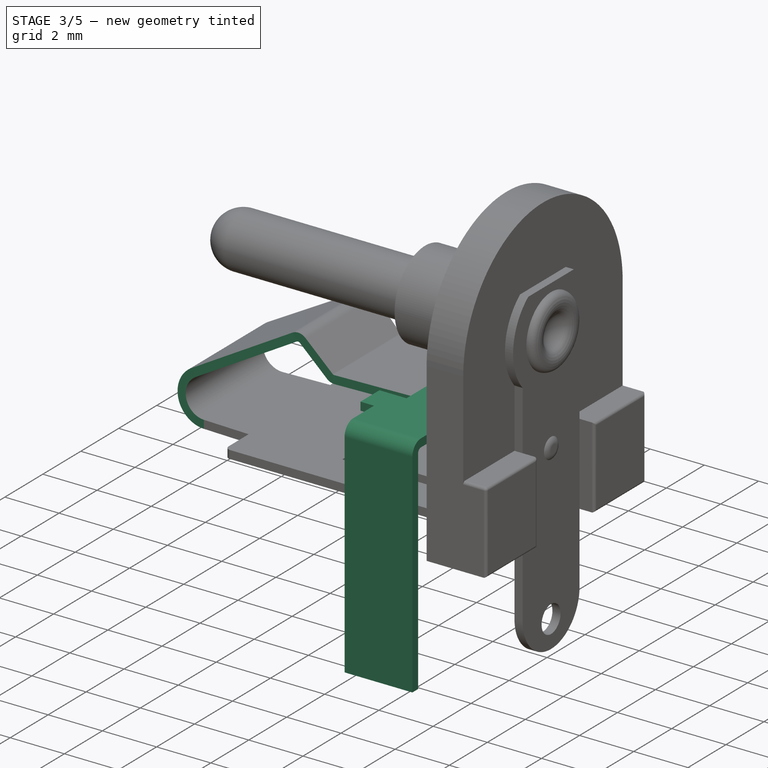
[diagram: stage 3 of 5 — iso view after this stage's code; geometry added in this stage tinted green]
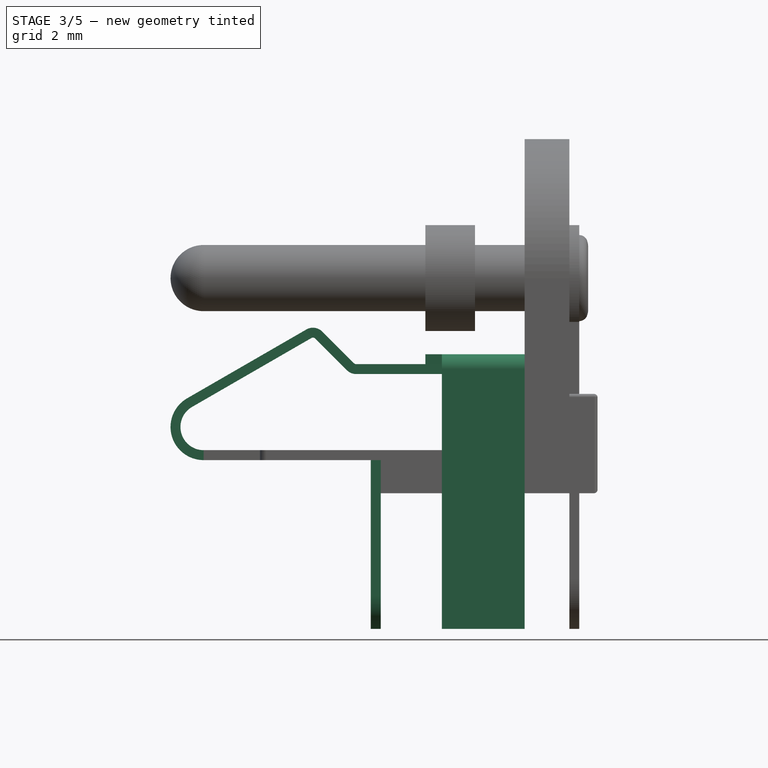
[diagram: stage 3 of 5 — front view after this stage's code; geometry added in this stage tinted green]
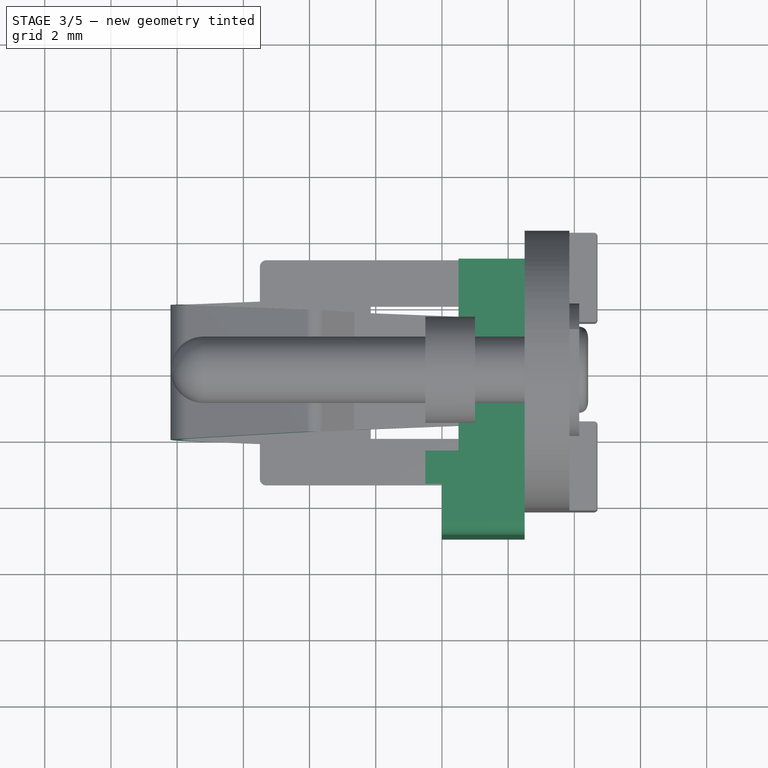
[diagram: stage 3 of 5 — top view after this stage's code; geometry added in this stage tinted green]
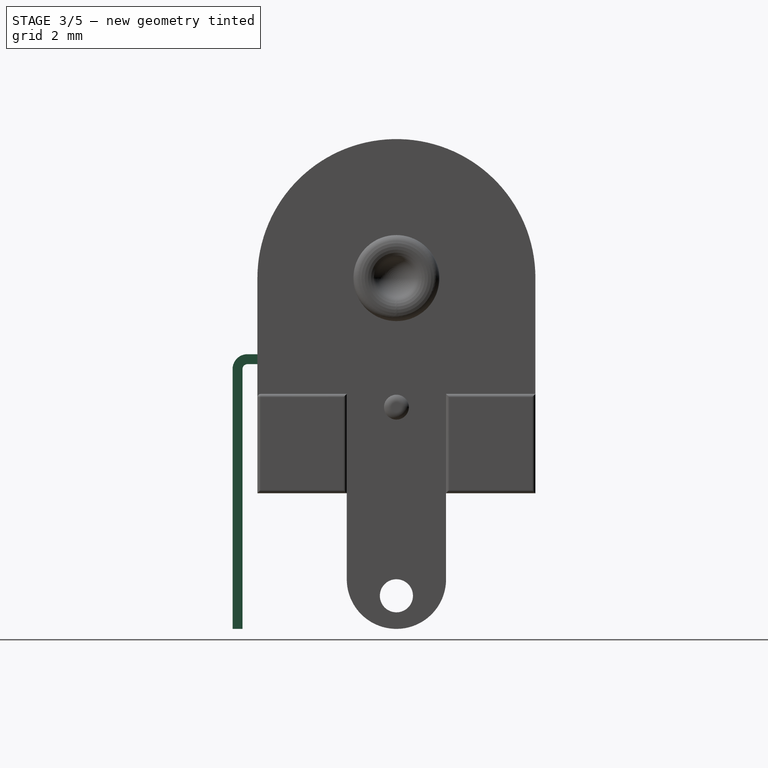
[diagram: stage 3 of 5 — right view after this stage's code; geometry added in this stage tinted green]
FEATURE [Sketcher::SketchObject] Sketch006
  FullyConstrained = true
  sketch-geometry (5):
    g0: LineSegment StartX=-13.5 StartY=4.5 StartZ=0 EndX=0.7 EndY=4.5 EndZ=0
    g1: LineSegment StartX=0.7 StartY=4.5 StartZ=0 EndX=0.7 EndY=-4.5 EndZ=0
    g2: LineSegment StartX=0.7 StartY=-4.5 StartZ=0 EndX=-13.5 EndY=-4.5 EndZ=0
    g3: LineSegment StartX=-13.5 StartY=-4.5 StartZ=0 EndX=-13.5 EndY=4.5 EndZ=0
    g4: LineSegment StartX=-10.2 StartY=4.5 StartZ=0 EndX=-10.2 EndY=-4.5 EndZ=0
  constraints (15):
    c: Coincident(g0,g1)
    c: Coincident(g1,g2)
    c: Coincident(g2,g3)
    c: Coincident(g3,g0)
    c: Horizontal(g0)
    c: Horizontal(g2)
    c: Vertical(g3)
    c: Symmetric(g0,g1,g-1)
    c: DistanceY(g3,g3) = 9
    c: DistanceX(g0,g0) = 14.2
    c: DistanceX(g-1,g1) = 0.7
    c: PointOnObject(g4,g0)
    c: PointOnObject(g4,g2)
    c: Vertical(g4)
    c: DistanceX(g2,g4) = 3.3
FEATURE [Sketcher::SketchObject] Sketch007
  FullyConstrained = true
  sketch-geometry (15):
    g0: LineSegment StartX=-0.4 StartY=1.75 StartZ=0 EndX=0.4 EndY=1.75 EndZ=0
    g1: LineSegment StartX=0.4 StartY=1.75 StartZ=0 EndX=0.4 EndY=-1.75 EndZ=0
    g2: LineSegment StartX=0.4 StartY=-1.75 StartZ=0 EndX=-0.4 EndY=-1.75 EndZ=0
    g3: LineSegment StartX=-0.4 StartY=-1.75 StartZ=0 EndX=-0.4 EndY=1.75 EndZ=0
    g4: LineSegment StartX=-4 StartY=-4.4 StartZ=0 EndX=-1 EndY=-4.4 EndZ=0
    g5: LineSegment StartX=-1 StartY=-4.4 StartZ=0 EndX=-1 EndY=-5.2 EndZ=0
    g6: LineSegment StartX=-1 StartY=-5.2 StartZ=0 EndX=-4 EndY=-5.2 EndZ=0
    g7: LineSegment StartX=-4 StartY=-5.2 StartZ=0 EndX=-4 EndY=-4.4 EndZ=0
    g8: LineSegment StartX=-4 StartY=-4.8 StartZ=0 EndX=-1 EndY=-4.8 EndZ=0
    g9: LineSegment StartX=-2.5 StartY=-4.4 StartZ=0 EndX=-2.5 EndY=-5.2 EndZ=0
    g10: LineSegment StartX=-5.6 StartY=1.5 StartZ=0 EndX=-6.4 EndY=1.5 EndZ=0
    g11: LineSegment StartX=-6.4 StartY=1.5 StartZ=0 EndX=-6.4 EndY=-1.5 EndZ=0
    g12: LineSegment StartX=-6.4 StartY=-1.5 StartZ=0 EndX=-5.6 EndY=-1.5 EndZ=0
    g13: LineSegment StartX=-5.6 StartY=-1.5 StartZ=0 EndX=-5.6 EndY=1.5 EndZ=0
    g14: LineSegment StartX=-6 StartY=1.5 StartZ=0 EndX=-6 EndY=-1.5 EndZ=0
  constraints (42):
    c: Coincident(g0,g1)
    c: Coincident(g1,g2)
    c: Coincident(g2,g3)
    c: Coincident(g3,g0)
    c: Horizontal(g2)
    c: Vertical(g3)
    c: Coincident(g4,g5)
    c: Coincident(g5,g6)
    c: Coincident(g6,g7)
    c: Coincident(g7,g4)
    c: Horizontal(g4)
    c: Horizontal(g6)
    c: Vertical(g5)
    c: Vertical(g7)
    c: Symmetric(g0,g1,g-1)
    c: Symmetric(g0,g0,g-2)
    c: DistanceX(g2,g2) = 0.8
    c: DistanceY(g1,g1) = 3.5
    c: Equal(g2,g5)
    c: DistanceX(g6,g6) = 3
    c: PointOnObject(g8,g7)
    c: Horizontal(g8)
    c: PointOnObject(g9,g6)
    c: Vertical(g9)
    c: Symmetric(g4,g5,g8)
    c: Symmetric(g4,g4,g9)
    c: DistanceY(g8,g-1) = 4.8
    c: Coincident(g10,g11)
    c: Coincident(g11,g12)
    c: Coincident(g12,g13)
    c: Coincident(g13,g10)
    c: Horizontal(g10)
    c: Horizontal(g12)
    c: Vertical(g13)
    c: PointOnObject(g14,g12)
    c: Vertical(g14)
    c: Symmetric(g10,g10,g14)
    c: Equal(g12,g2)
    c: DistanceY(g13,g13) = 3
    c: Symmetric(g10,g11,g-1)
    c: DistanceX(g14,g-1) = 6
    c: DistanceX(g9,g-1) = 2.5
FEATURE [Sketcher::SketchObject] Sketch008
  FullyConstrained = true
  sketch-geometry (15):
    g0: LineSegment StartX=-0.15 StartY=1.5 StartZ=0 EndX=0.15 EndY=1.5 EndZ=0
    g1: LineSegment StartX=0.15 StartY=1.5 StartZ=0 EndX=0.15 EndY=-1.5 EndZ=0
    g2: LineSegment StartX=0.15 StartY=-1.5 StartZ=0 EndX=-0.15 EndY=-1.5 EndZ=0
    g3: LineSegment StartX=-0.15 StartY=-1.5 StartZ=0 EndX=-0.15 EndY=1.5 EndZ=0
    g4: LineSegment StartX=-3.5 StartY=-4.65 StartZ=0 EndX=-1.5 EndY=-4.65 EndZ=0
    g5: LineSegment StartX=-1.5 StartY=-4.65 StartZ=0 EndX=-1.5 EndY=-4.95 EndZ=0
    g6: LineSegment StartX=-1.5 StartY=-4.95 StartZ=0 EndX=-3.5 EndY=-4.95 EndZ=0
    g7: LineSegment StartX=-3.5 StartY=-4.95 StartZ=0 EndX=-3.5 EndY=-4.65 EndZ=0
    g8: LineSegment StartX=-3.5 StartY=-4.8 StartZ=0 EndX=-1.5 EndY=-4.8 EndZ=0
    g9: LineSegment StartX=-2.5 StartY=-4.65 StartZ=0 EndX=-2.5 EndY=-4.95 EndZ=0
    g10: LineSegment StartX=-5.85 StartY=1 StartZ=0 EndX=-6.15 EndY=1 EndZ=0
    g11: LineSegment StartX=-6.15 StartY=1 StartZ=0 EndX=-6.15 EndY=-1 EndZ=0
    g12: LineSegment StartX=-6.15 StartY=-1 StartZ=0 EndX=-5.85 EndY=-1 EndZ=0
    g13: LineSegment StartX=-5.85 StartY=-1 StartZ=0 EndX=-5.85 EndY=1 EndZ=0
    g14: LineSegment StartX=-6 StartY=1 StartZ=0 EndX=-6 EndY=-1 EndZ=0
  constraints (42):
    c: Coincident(g0,g1)
    c: Coincident(g1,g2)
    c: Coincident(g2,g3)
    c: Coincident(g3,g0)
    c: Horizontal(g2)
    c: Vertical(g3)
    c: Coincident(g4,g5)
    c: Coincident(g5,g6)
    c: Coincident(g6,g7)
    c: Coincident(g7,g4)
    c: Horizontal(g4)
    c: Horizontal(g6)
    c: Vertical(g5)
    c: Vertical(g7)
    c: Symmetric(g0,g1,g-1)
    c: Symmetric(g0,g0,g-2)
    c: DistanceX(g2,g2) = 0.3
    c: DistanceY(g1,g1) = 3
    c: Equal(g2,g5)
    c: DistanceX(g6,g6) = 2
    c: PointOnObject(g8,g7)
    c: Horizontal(g8)
    c: PointOnObject(g9,g6)
    c: Vertical(g9)
    c: Symmetric(g4,g5,g8)
    c: Symmetric(g4,g4,g9)
    c: DistanceY(g8,g-1) = 4.8
    c: Coincident(g10,g11)
    c: Coincident(g11,g12)
    c: Coincident(g12,g13)
    c: Coincident(g13,g10)
    c: Horizontal(g10)
    c: Horizontal(g12)
    c: Vertical(g13)
    c: PointOnObject(g14,g12)
    c: Vertical(g14)
    c: Symmetric(g10,g10,g14)
    c: Equal(g12,g2)
    c: DistanceY(g13,g13) = 2
    c: Symmetric(g10,g11,g-1)
    c: DistanceX(g14,g-1) = 6
    c: DistanceX(g9,g-1) = 2.5
FEATURE [App::Part] Part  label="Foot markings"
  Group = -> [Sketch006,Sketch007,Sketch008]
  Origin = -> Origin
FEATURE [Sketcher::SketchObject] Sketch049
  AttachmentOffset = pos=(0,0,4.7) rot=(0,0,1;0rad)
  FullyConstrained = true
  MapMode = 5
  Placement = pos=(0,0,4.7) rot=(0,0,1;0rad)
  Support = -> [XY_Plane024]
  sketch-geometry (12):
    g0: LineSegment StartX=-3.5 StartY=-2.4 StartZ=0 EndX=-3.5 EndY=3.4 EndZ=0
    g1: LineSegment StartX=-3.5 StartY=3.4 StartZ=0 EndX=-1.5 EndY=3.4 EndZ=0
    g2: LineSegment StartX=-1.5 StartY=3.4 StartZ=0 EndX=-1.5 EndY=4 EndZ=0
    g3: LineSegment StartX=-1.5 StartY=4 StartZ=0 EndX=-0.5 EndY=4 EndZ=0
    g4: LineSegment StartX=-0.5 StartY=4 StartZ=0 EndX=-0.5 EndY=2.4 EndZ=0
    g5: LineSegment StartX=-0.5 StartY=2.4 StartZ=0 EndX=-1.5 EndY=2.4 EndZ=0
    g6: LineSegment StartX=-1.5 StartY=2.4 StartZ=0 EndX=-1.5 EndY=-4.5 EndZ=0
    g7: LineSegment StartX=-1.5 StartY=-4.5 StartZ=0 EndX=-4 EndY=-4.5 EndZ=0
    g8: LineSegment StartX=-4 StartY=-4.5 StartZ=0 EndX=-4 EndY=-3.4 EndZ=0
    g9: LineSegment StartX=-4 StartY=-3.4 StartZ=0 EndX=-4.5 EndY=-3.4 EndZ=0
    g10: LineSegment StartX=-4.5 StartY=-3.4 StartZ=0 EndX=-4.5 EndY=-2.4 EndZ=0
    g11: LineSegment StartX=-4.5 StartY=-2.4 StartZ=0 EndX=-3.5 EndY=-2.4 EndZ=0
  constraints (36):
    c: Vertical(g0)
    c: Coincident(g0,g1)
    c: Horizontal(g1)
    c: Coincident(g1,g2)
    c: Vertical(g2)
    c: Coincident(g2,g3)
    c: Horizontal(g3)
    c: Coincident(g3,g4)
    c: Vertical(g4)
    c: Coincident(g4,g5)
    c: Horizontal(g5)
    c: Coincident(g5,g6)
    c: Vertical(g6)
    c: Horizontal(g7)
    c: Coincident(g7,g8)
    c: Vertical(g8)
    c: Coincident(g8,g9)
    c: Horizontal(g9)
    c: Coincident(g9,g10)
    c: Vertical(g10)
    c: Coincident(g10,g11)
    c: Coincident(g11,g0)
    c: Horizontal(g11)
    c: DistanceX(g6) = -1.5
    c: DistanceY(g6,g-1) = 4.5
    c: DistanceY(g-1,g3) = 4
    c: DistanceY(g-1,g4) = 2.4
    c: DistanceY(g10,g10) = 1
    c: DistanceX(g10,g0) = 1
    c: DistanceY(g-1,g1) = 3.4
    c: DistanceY(g7,g9) = 1.1
    c: Coincident(g7,g6)
    c: DistanceX(g7,g7) = 2.5
    c: DistanceX(g1,g1) = 2
    c: DistanceX(g2) = -1.5
    c: DistanceX(g3,g3) = 1
FEATURE [PartDesign::Pad] Pad016
  Direction = (0,0,1)
  Length = 0.3
  Length2 = 10
  Profile = -> Sketch049
  ReferenceAxis = -> Sketch049 [N_Axis]
  Reversed = true
  Type = 0
FEATURE [PartDesign::FeaturePython] Bend004  # WARN: FeaturePython — macro-defined, semantics opaque (R4)
  AutoMiter = true
  BaseFeature = -> Pad016
  BendType = 0
  LengthList = [7.85]
  LengthSpec = 0
  ReliefFactor = 0.7
  UseReliefFactor = false
  angle = 90
  baseObject = -> Pad016 [Edge24]
  bendAList = [90]
  extend1 = 0
  extend2 = 0
  gap1 = 0
  gap2 = 0
  invert = false
  kfactor = 0.5
  length = 7.85
  maxExtendDist = 5
  minGap = 0.1
  minReliefGap = 1
  miterangle1 = 0
  miterangle2 = 0
  offset = 0
  radius = 0.15
  reliefType = 0
  reliefd = 1
  reliefw = 0.8
  sketchflip = false
  sketchinvert = false
  unfold = false
FEATURE [Sketcher::SketchObject] Sketch076
  FullyConstrained = true
  MapMode = 5
  Placement = pos=(0,0,0) rot=(1,0,0;1.5708rad)
  Support = -> [XZ_Plane031]
  sketch-geometry (4):
    g0: LineSegment StartX=-5.85 StartY=1.5 StartZ=0 EndX=-5.85 EndY=-4 EndZ=0
    g1: LineSegment StartX=-5.85 StartY=-4 StartZ=0 EndX=-6.15 EndY=-4 EndZ=0
    g2: LineSegment StartX=-6.15 StartY=-4 StartZ=0 EndX=-6.15 EndY=1.8 EndZ=0
    g3: ArcOfCircle CenterX=-6.15 CenterY=1.5 CenterZ=0 NormalX=0 NormalY=0 NormalZ=1 AngleXU=0 Radius=0.3 StartAngle=3e-16 EndAngle=1.5708
  constraints (12):
    c: Vertical(g0)
    c: Coincident(g1,g0)
    c: Horizontal(g1)
    c: Coincident(g2,g1)
    c: Vertical(g2)
    c: DistanceX(g1,g1) = 0.3
    c: DistanceY(g0,g-1) = 4
    c: PointOnObject(g3,g2)
    c: Coincident(g3,g2)
    c: Tangent(g3,g0) = 1.5708
    c: DistanceX(g1,g-1) = 6.15
    c: DistanceY(g2) = 1.8
FEATURE [PartDesign::Pad] Pad024
  BaseFeature = -> Pad023
  Direction = (0,-1,-2e-16)
  Length = 2
  Length2 = 10
  Midplane = true
  Profile = -> Sketch076
  ReferenceAxis = -> Sketch076 [N_Axis]
  Type = 0
FEATURE [Sketcher::SketchObject] Sketch075
  FullyConstrained = true
  MapMode = 5
  Placement = pos=(-5.85,0,0) rot=(0.57735,0.57735,0.57735;2.0944rad)
  Support = -> [Pad024]
  sketch-geometry (8):
    g0: Circle CenterX=0 CenterY=-2.6 CenterZ=0 NormalX=0 NormalY=0 NormalZ=1 AngleXU=0 Radius=0.5
    g1: ArcOfCircle CenterX=0 CenterY=-2.6 CenterZ=0 NormalX=0 NormalY=0 NormalZ=1 AngleXU=0 Radius=1 StartAngle=3.14159 EndAngle=6.28319
    g2: LineSegment StartX=-1 StartY=-3.6 StartZ=0 EndX=1 EndY=-3.6 EndZ=0
    g3: LineSegment StartX=1 StartY=-2.6 StartZ=0 EndX=1.5 EndY=-2.6 EndZ=0
    g4: LineSegment StartX=1.5 StartY=-2.6 StartZ=0 EndX=1.5 EndY=-4.1 EndZ=0
    g5: LineSegment StartX=1.5 StartY=-4.1 StartZ=0 EndX=-1.5 EndY=-4.1 EndZ=0
    g6: LineSegment StartX=-1.5 StartY=-4.1 StartZ=0 EndX=-1.5 EndY=-2.6 EndZ=0
    g7: LineSegment StartX=-1.5 StartY=-2.6 StartZ=0 EndX=-1 EndY=-2.6 EndZ=0
  constraints (24):
    c: PointOnObject(g0,g-2)
    c: Coincident(g1,g0)
    c: Tangent(g2,g1)
    c: DistanceY(g2,g-1) = 3.6
    c: Coincident(g3,g1)
    c: Horizontal(g3)
    c: Coincident(g4,g3)
    c: Vertical(g4)
    c: Coincident(g5,g4)
    c: Horizontal(g5)
    c: Coincident(g6,g5)
    c: Vertical(g6)
    c: Coincident(g7,g6)
    c: Coincident(g7,g1)
    c: Horizontal(g7)
    c: Equal(g3,g7)
    c: Symmetric(g2,g2,g-2)
    c: DistanceX(g2,g2) = 2
    c: Vertical(g1,g2)
    c: Horizontal(g1,g0)
    c: Horizontal(g0,g1)
    c: Diameter(g0) = 1
    c: DistanceX(g5,g5) = 3
    c: DistanceY(g6,g6) = 1.5
FEATURE [PartDesign::Pocket] Pocket019
  BaseFeature = -> Pad024
  Direction = (-1,0,0)
  Length = 0.3
  Length2 = 5
  Profile = -> Sketch075
  ReferenceAxis = -> Sketch075 [N_Axis]
  Type = 0
FEATURE [Sketcher::SketchObject] Sketch077
  ExternalGeometry = -> [Pocket019]
  FullyConstrained = true
  MapMode = 5
  Placement = pos=(-9.5,0,0) rot=(0.57735,-0.57735,-0.57735;2.0944rad)
  Support = -> [Pocket019]
  sketch-geometry (4):
    g0: LineSegment StartX=2.15 StartY=1.9 StartZ=0 EndX=3.6 EndY=1.9 EndZ=0
    g1: LineSegment StartX=3.6 StartY=1.9 StartZ=0 EndX=3.6 EndY=1.4 EndZ=0
    g2: LineSegment StartX=3.6 StartY=1.4 StartZ=0 EndX=2.15 EndY=1.4 EndZ=0
    g3: LineSegment StartX=2.15 StartY=1.4 StartZ=0 EndX=2.15 EndY=1.9 EndZ=0
  constraints (12):
    c: Coincident(g0,g1)
    c: Coincident(g1,g2)
    c: Coincident(g2,g3)
    c: Coincident(g3,g0)
    c: Horizontal(g0)
    c: Horizontal(g2)
    c: Vertical(g1)
    c: Vertical(g3)
    c: PointOnObject(g-3,g3)
    c: DistanceY(g1,g1) = 0.5
    c: DistanceY(g-3,g0) = 0.1
    c: DistanceX(g2,g2) = 1.45
FEATURE [Sketcher::SketchObject] Sketch078
  ExternalGeometry = -> [Pocket019]
  FullyConstrained = true
  MapMode = 5
  Placement = pos=(-2.3,0,0) rot=(0.57735,0.57735,0.57735;2.0944rad)
  Support = -> [Pocket019]
  sketch-geometry (4):
    g0: LineSegment StartX=-2.6 StartY=4.5 StartZ=0 EndX=-1.6 EndY=4.5 EndZ=0
    g1: LineSegment StartX=-1.6 StartY=4.5 StartZ=0 EndX=-1.6 EndY=4 EndZ=0
    g2: LineSegment StartX=-1.6 StartY=4 StartZ=0 EndX=-2.6 EndY=4 EndZ=0
    g3: LineSegment StartX=-2.6 StartY=4 StartZ=0 EndX=-2.6 EndY=4.5 EndZ=0
  constraints (12):
    c: Coincident(g0,g1)
    c: Coincident(g1,g2)
    c: Coincident(g2,g3)
    c: Coincident(g3,g0)
    c: Horizontal(g0)
    c: Horizontal(g2)
    c: Vertical(g1)
    c: Vertical(g3)
    c: DistanceX(g0) = -1.6
    c: DistanceY(g3,g3) = 0.5
    c: DistanceY(g-3,g0) = 0.1
    c: DistanceX(g2,g2) = 1
FEATURE [PartDesign::SubtractivePipe] SubtractivePipe
  AuxilleryCurvelinear = true
  AuxillerySpineTangent = false
  BaseFeature = -> Pocket019
  Binormal = (0,0,0)
  Mode = 0
  Profile = -> Sketch078
  Refine = true
  Sections = -> [Sketch077]
  Spine = -> Pocket019 [Edge73,Edge74,Edge75,Edge76,Edge77,Edge78,Edge61,Edge33]
  SpineTangent = false
  Transformation = 1
  Transition = 0
FEATURE [PartDesign::Mirrored] Mirrored
  BaseFeature = -> SubtractivePipe
  MirrorPlane = -> Sketch078 [V_Axis]
  Originals = -> [SubtractivePipe]
  Refine = true
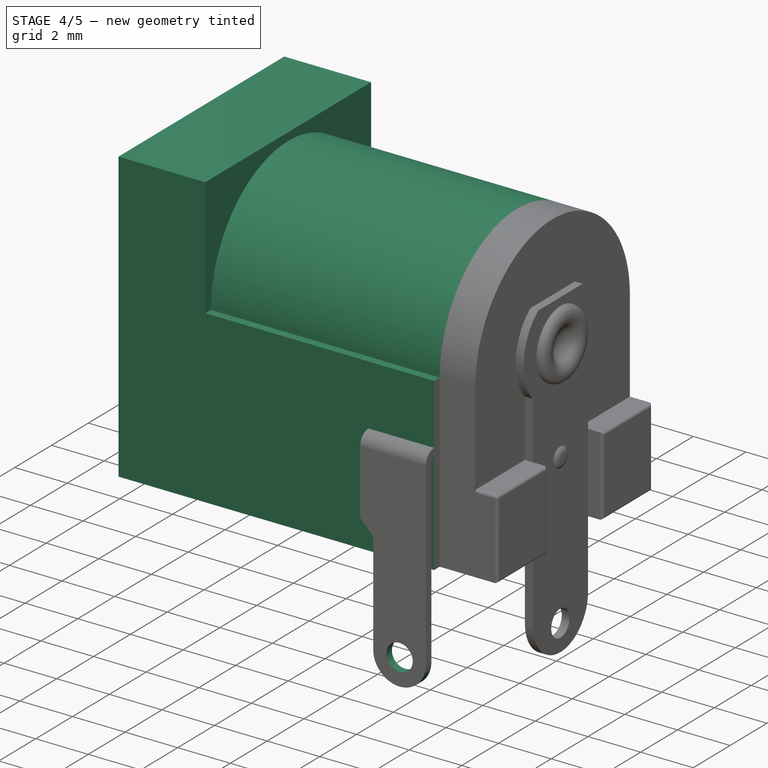
[diagram: stage 4 of 5 — iso view after this stage's code; geometry added in this stage tinted green]
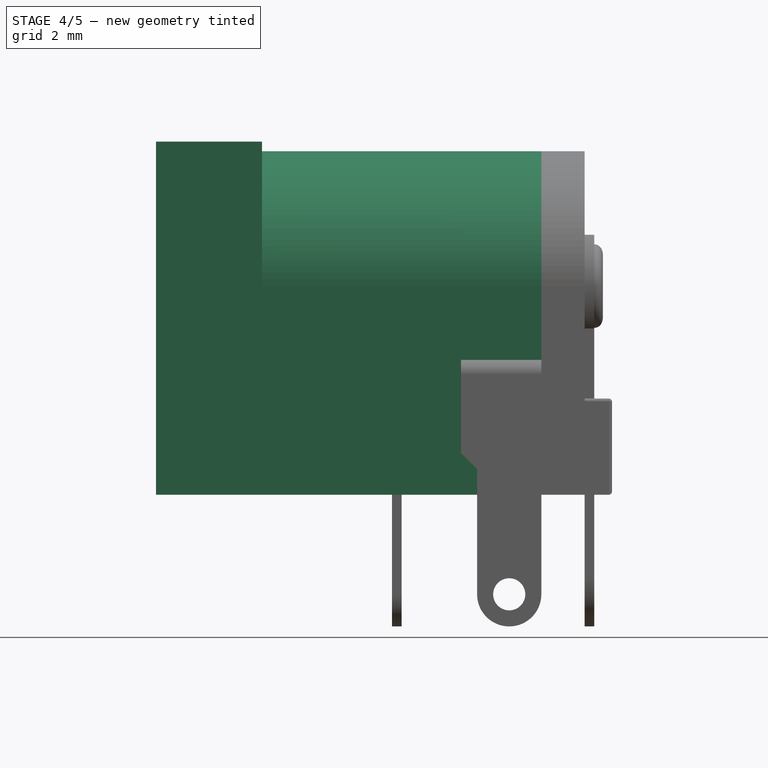
[diagram: stage 4 of 5 — front view after this stage's code; geometry added in this stage tinted green]
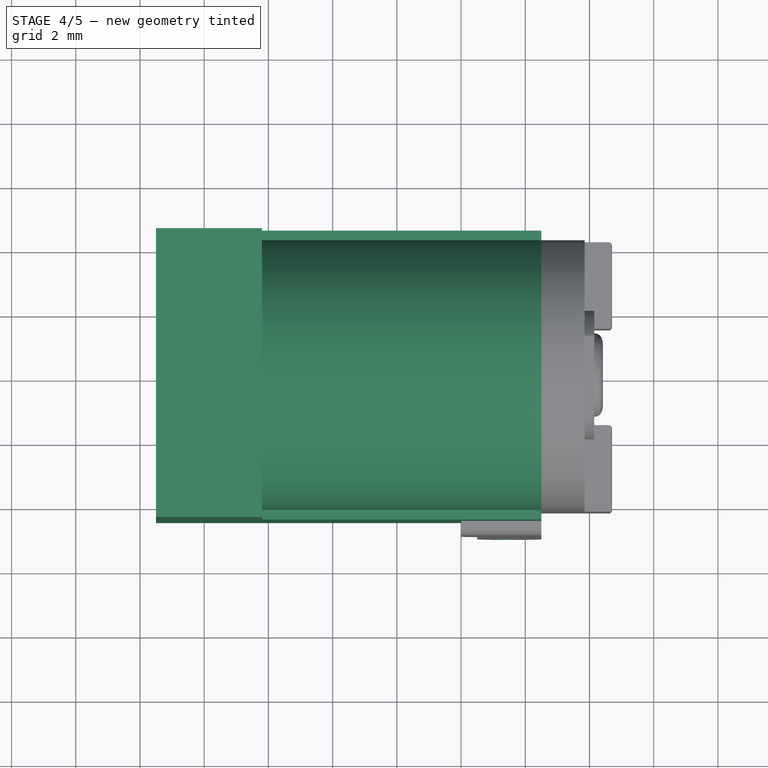
[diagram: stage 4 of 5 — top view after this stage's code; geometry added in this stage tinted green]
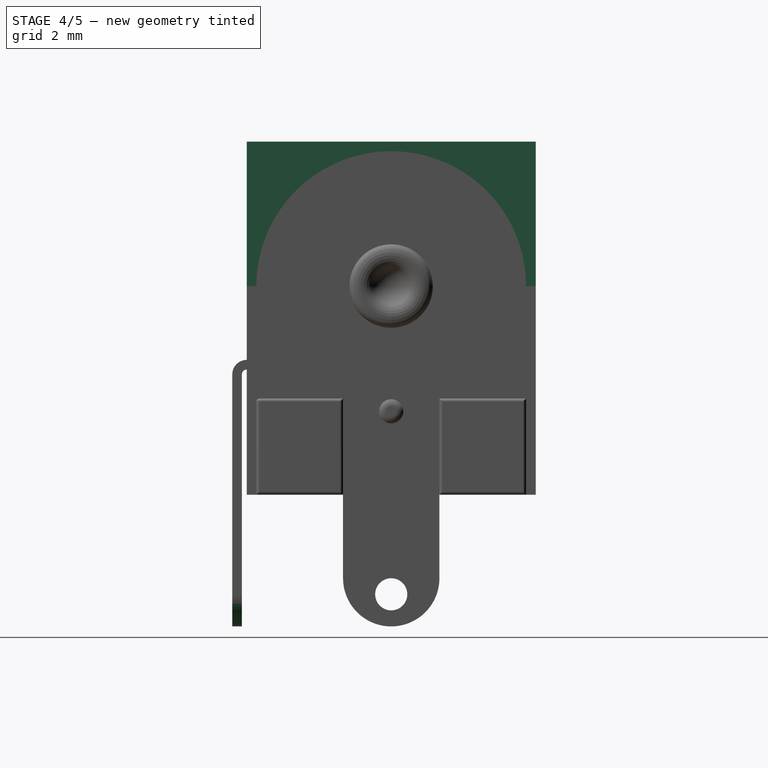
[diagram: stage 4 of 5 — right view after this stage's code; geometry added in this stage tinted green]
FEATURE [Image::ImagePlane] ImagePlane  label="DC Power Jack Drawing"
  Placement = pos=(-126,0,0) rot=(1,0,0;1.5708rad)
  XSize = 210.058
  YSize = 297.011
FEATURE [Sketcher::SketchObject] Sketch024
  AttachmentOffset = pos=(0,0,-13.5) rot=(0,0,1;0rad)
  FullyConstrained = true
  MapMode = 5
  Placement = pos=(-13.5,3e-15,-3e-15) rot=(0.57735,0.57735,0.57735;2.0944rad)
  Support = -> [YZ_Plane019]
  sketch-geometry (4):
    g0: LineSegment StartX=-4.5 StartY=11.5 StartZ=0 EndX=4.5 EndY=11.5 EndZ=0
    g1: LineSegment StartX=4.5 StartY=11.5 StartZ=0 EndX=4.5 EndY=0.5 EndZ=0
    g2: LineSegment StartX=4.5 StartY=0.5 StartZ=0 EndX=-4.5 EndY=0.5 EndZ=0
    g3: LineSegment StartX=-4.5 StartY=0.5 StartZ=0 EndX=-4.5 EndY=11.5 EndZ=0
  constraints (11):
    c: Coincident(g0,g1)
    c: Coincident(g1,g2)
    c: Coincident(g2,g3)
    c: Coincident(g3,g0)
    c: Horizontal(g0)
    c: Vertical(g1)
    c: Vertical(g3)
    c: Symmetric(g2,g1,g-2)
    c: DistanceY(g-1,g1) = 0.5
    c: DistanceX(g0,g0) = 9
    c: DistanceY(g3,g3) = 11
FEATURE [PartDesign::Pad] Pad009
  Direction = (1,-2e-16,3e-16)
  Length = 12
  Length2 = 10
  Placement = pos=(0,0,0) rot=(0.57735,0.57735,0.57735;2.0944rad)
  Profile = -> Sketch024
  ReferenceAxis = -> Sketch024 [N_Axis]
  Type = 0
FEATURE [Sketcher::SketchObject] Sketch025
  AttachmentOffset = pos=(0,0,-10.2) rot=(0,0,1;0rad)
  FullyConstrained = true
  MapMode = 5
  Placement = pos=(-10.2,2.3e-15,-2.3e-15) rot=(0.57735,0.57735,0.57735;2.0944rad)
  Support = -> [YZ_Plane019]
  sketch-geometry (6):
    g0: LineSegment StartX=-5 StartY=7 StartZ=0 EndX=-4.2 EndY=7 EndZ=0
    g1: LineSegment StartX=4.2 StartY=7 StartZ=0 EndX=5 EndY=7 EndZ=0
    g2: ArcOfCircle CenterX=0 CenterY=7 CenterZ=0 NormalX=0 NormalY=0 NormalZ=1 AngleXU=0 Radius=4.2 StartAngle=1e-15 EndAngle=3.14159
    g3: LineSegment StartX=-5 StartY=7 StartZ=0 EndX=-5 EndY=12 EndZ=0
    g4: LineSegment StartX=-5 StartY=12 StartZ=0 EndX=5 EndY=12 EndZ=0
    g5: LineSegment StartX=5 StartY=12 StartZ=0 EndX=5 EndY=7 EndZ=0
  constraints (19):
    c: Horizontal(g0)
    c: Horizontal(g1)
    c: PointOnObject(g2,g-2)
    c: Coincident(g2,g0)
    c: Coincident(g2,g1)
    c: Perpendicular(g2,g0)
    c: Perpendicular(g2,g1)
    c: DistanceY(g-1,g1) = 7
    c: Coincident(g0,g3)
    c: Vertical(g3)
    c: Coincident(g3,g4)
    c: Horizontal(g4)
    c: Coincident(g4,g5)
    c: Coincident(g5,g1)
    c: Vertical(g5)
    c: Equal(g0,g1)
    c: DistanceX(g4,g4) = 10
    c: DistanceY(g5,g5) = 5
    c: DistanceX(g1,g1) = 0.8
FEATURE [PartDesign::Pocket] Pocket006
  BaseFeature = -> Pad009
  Direction = (-1,2e-16,-3e-16)
  Length = 5
  Length2 = 5
  Placement = pos=(0,0,0) rot=(0.57735,0.57735,0.57735;2.0944rad)
  Profile = -> Sketch025
  ReferenceAxis = -> Sketch025 [N_Axis]
  Reversed = true
  Type = 1
FEATURE [Sketcher::SketchObject] Sketch031
  FullyConstrained = true
  MapMode = 5
  Placement = pos=(0,0,0) rot=(1,0,0;1.5708rad)
  Support = -> [XZ_Plane019]
  sketch-geometry (9):
    g0: LineSegment StartX=-3 StartY=8.6 StartZ=0 EndX=-3 EndY=8 EndZ=0
    g1: LineSegment StartX=0 StartY=7 StartZ=0 EndX=-14 EndY=7 EndZ=0
    g2: LineSegment StartX=-14 StartY=7 StartZ=0 EndX=-14 EndY=10.2 EndZ=0
    g3: LineSegment StartX=-4 StartY=8.6 StartZ=0 EndX=-3 EndY=8.6 EndZ=0
    g4: LineSegment StartX=-14 StartY=10.2 StartZ=0 EndX=-4 EndY=10.2 EndZ=0
    g5: LineSegment StartX=-4 StartY=10.2 StartZ=0 EndX=-4 EndY=8.6 EndZ=0
    g6: LineSegment StartX=-14 StartY=7 StartZ=0 EndX=-24 EndY=7 EndZ=0
    g7: LineSegment StartX=-3 StartY=8 StartZ=0 EndX=0 EndY=8 EndZ=0
    g8: LineSegment StartX=0 StartY=8 StartZ=0 EndX=0 EndY=7 EndZ=0
  constraints (27):
    c: Coincident(g3,g0)
    c: Coincident(g1,g2)
    c: Coincident(g2,g4)
    c: Horizontal(g1)
    c: Vertical(g0)
    c: Vertical(g2)
    c: Coincident(g5,g3)
    c: Horizontal(g3)
    c: Coincident(g4,g5)
    c: Horizontal(g4)
    c: Vertical(g5)
    c: DistanceY(g-1,g1) = 7
    c: DistanceY(g2,g2) = 3.2
    c: DistanceX(g4,g0) = 1
    c: DistanceY(g1,g0) = 1.6
    c: Coincident(g6,g1)
    c: Horizontal(g6)
    c: Equal(g4,g6)
    c: Horizontal(g7)
    c: Coincident(g8,g7)
    c: Vertical(g8)
    c: Coincident(g0,g7)
    c: Coincident(g8,g1)
    c: PointOnObject(g1,g-2)
    c: DistanceY(g8,g8) = 1
    c: DistanceX(g1,g1) = 14
    c: DistanceX(g7,g7) = 3
FEATURE [PartDesign::Groove] Groove
  Angle = 360
  Axis = (-10,0,0)
  Base = (-14,-1.6e-15,7)
  BaseFeature = -> Pocket006
  Placement = pos=(0,0,0) rot=(0.57735,0.57735,0.57735;2.0944rad)
  Profile = -> Sketch031
  ReferenceAxis = -> Sketch031 [Axis0]
FEATURE [Sketcher::SketchObject] Sketch032
  AttachmentOffset = pos=(0,0,-1.5) rot=(0,0,1;0rad)
  FullyConstrained = true
  MapMode = 5
  Placement = pos=(-1.5,3e-16,-3e-16) rot=(0.57735,0.57735,0.57735;2.0944rad)
  Support = -> [YZ_Plane019]
  sketch-geometry (8):
    g0: LineSegment StartX=-2.9 StartY=4.4 StartZ=0 EndX=2.9 EndY=4.4 EndZ=0
    g1: LineSegment StartX=3.4 StartY=1.5 StartZ=0 EndX=-3.4 EndY=1.5 EndZ=0
    g2: LineSegment StartX=-3.4 StartY=1.5 StartZ=0 EndX=-3.4 EndY=1.8 EndZ=0
    g3: LineSegment StartX=-3.4 StartY=1.8 StartZ=0 EndX=-2.9 EndY=1.8 EndZ=0
    g4: LineSegment StartX=-2.9 StartY=1.8 StartZ=0 EndX=-2.9 EndY=4.4 EndZ=0
    g5: LineSegment StartX=3.4 StartY=1.8 StartZ=0 EndX=3.4 EndY=1.5 EndZ=0
    g6: LineSegment StartX=2.9 StartY=4.4 StartZ=0 EndX=2.9 EndY=1.8 EndZ=0
    g7: LineSegment StartX=2.9 StartY=1.8 StartZ=0 EndX=3.4 EndY=1.8 EndZ=0
  constraints (23):
    c: Coincident(g0,g6)
    c: Coincident(g5,g1)
    c: Coincident(g1,g2)
    c: Coincident(g4,g0)
    c: Horizontal(g0)
    c: Coincident(g2,g3)
    c: Vertical(g2)
    c: Coincident(g3,g4)
    c: Vertical(g4)
    c: Coincident(g7,g5)
    c: Vertical(g5)
    c: Coincident(g6,g7)
    c: Vertical(g6)
    c: Horizontal(g7)
    c: Horizontal(g3)
    c: Symmetric(g1,g1,g-2)
    c: Equal(g3,g7)
    c: Horizontal(g6,g3)
    c: DistanceY(g1) = 1.5
    c: DistanceY(g5,g5) = 0.3
    c: DistanceY(g1,g0) = 2.9
    c: DistanceX(g0,g0) = 5.8
    c: DistanceX(g1,g1) = 6.8
FEATURE [PartDesign::Pocket] Pocket007
  BaseFeature = -> Groove
  Direction = (-1,2e-16,-3e-16)
  Length = 8
  Length2 = 5
  Placement = pos=(0,0,0) rot=(0.57735,0.57735,0.57735;2.0944rad)
  Profile = -> Sketch032
  ReferenceAxis = -> Sketch032 [N_Axis]
  Type = 0
FEATURE [Sketcher::SketchObject] Sketch054
  FullyConstrained = true
  MapMode = 5
  Placement = pos=(0,-4.95,0) rot=(1,0,0;1.5708rad)
  Support = -> [Bend004]
  sketch-geometry (10):
    g0: ArcOfCircle CenterX=-2.5 CenterY=-2.6 CenterZ=0 NormalX=0 NormalY=0 NormalZ=1 AngleXU=0 Radius=1 StartAngle=3.14159 EndAngle=6.28319
    g1: LineSegment StartX=-3.5 StartY=-3.6 StartZ=0 EndX=-1.5 EndY=-3.6 EndZ=0
    g2: GeomPoint X=-2.5 Y=-3.6 Z=0
    g3: LineSegment StartX=-4.2 StartY=2 StartZ=0 EndX=-4.2 EndY=-4.6 EndZ=0
    g4: LineSegment StartX=-4.2 StartY=-4.6 StartZ=0 EndX=-1.2 EndY=-4.6 EndZ=0
    g5: LineSegment StartX=-1.2 StartY=-4.6 StartZ=0 EndX=-1.2 EndY=-2.6 EndZ=0
    g6: LineSegment StartX=-1.2 StartY=-2.6 StartZ=0 EndX=-1.5 EndY=-2.6 EndZ=0
    g7: Circle CenterX=-2.5 CenterY=-2.6 CenterZ=0 NormalX=0 NormalY=0 NormalZ=1 AngleXU=0 Radius=0.5
    g8: LineSegment StartX=-4.2 StartY=2 StartZ=0 EndX=-3.5 EndY=1.3 EndZ=0
    g9: LineSegment StartX=-3.5 StartY=1.3 StartZ=0 EndX=-3.5 EndY=-2.6 EndZ=0
  constraints (29):
    c: Horizontal(g1)
    c: DistanceY(g1,g-1) = 3.6
    c: DistanceX(g1,g1) = 2
    c: Symmetric(g1,g1,g2)
    c: DistanceX(g2,g-1) = 2.5
    c: Vertical(g3)
    c: Coincident(g4,g3)
    c: Horizontal(g4)
    c: Coincident(g5,g4)
    c: Vertical(g5)
    c: Coincident(g6,g5)
    c: Coincident(g6,g0)
    c: Horizontal(g6)
    c: Horizontal(g0,g0)
    c: Horizontal(g0,g0)
    c: Tangent(g0,g1)
    c: DistanceX(g4,g4) = 3
    c: Vertical(g2,g0)
    c: Coincident(g7,g0)
    c: Diameter(g7) = 1
    c: DistanceY(g4,g-1) = 4.6
    c: DistanceX(g6,g6) = 0.3
    c: Coincident(g8,g3)
    c: Coincident(g9,g8)
    c: Coincident(g9,g0)
    c: Vertical(g9)
    c: Angle(g3,g8) = 0.785398
    c: DistanceY(g4,g8) = 5.9
    c: Vertical(g1,g0)
FEATURE [PartDesign::Pocket] Pocket014
  BaseFeature = -> Bend004
  Direction = (0,1,-2e-16)
  Length = 5
  Length2 = 5
  Profile = -> Sketch054
  ReferenceAxis = -> Sketch054 [N_Axis]
  Refine = true
  Type = 1
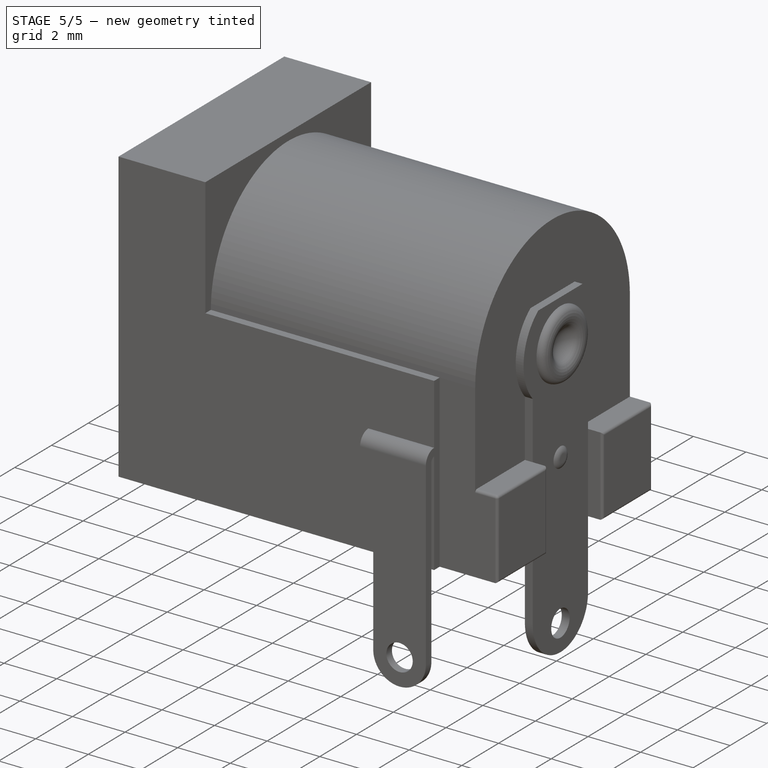
[diagram: stage 5 of 5 — iso view after this stage's code; geometry added in this stage tinted green]
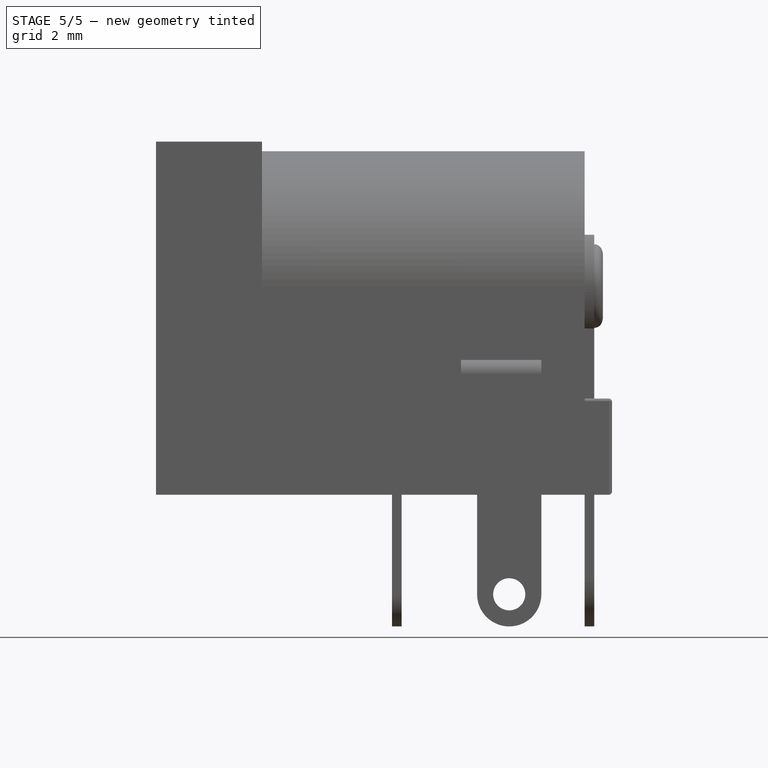
[diagram: stage 5 of 5 — front view after this stage's code; geometry added in this stage tinted green]
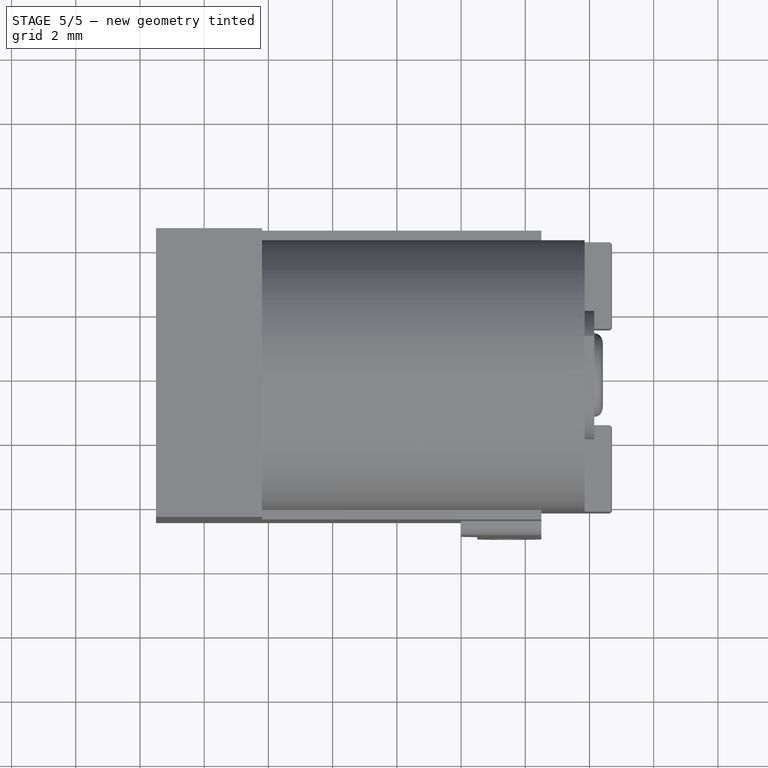
[diagram: stage 5 of 5 — top view after this stage's code; geometry added in this stage tinted green]
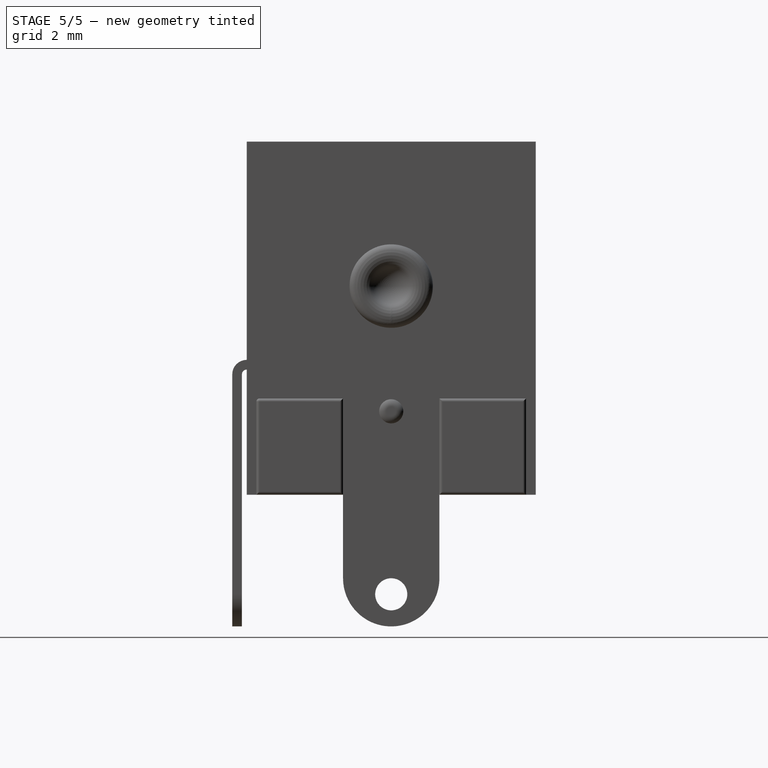
[diagram: stage 5 of 5 — right view after this stage's code; geometry added in this stage tinted green]
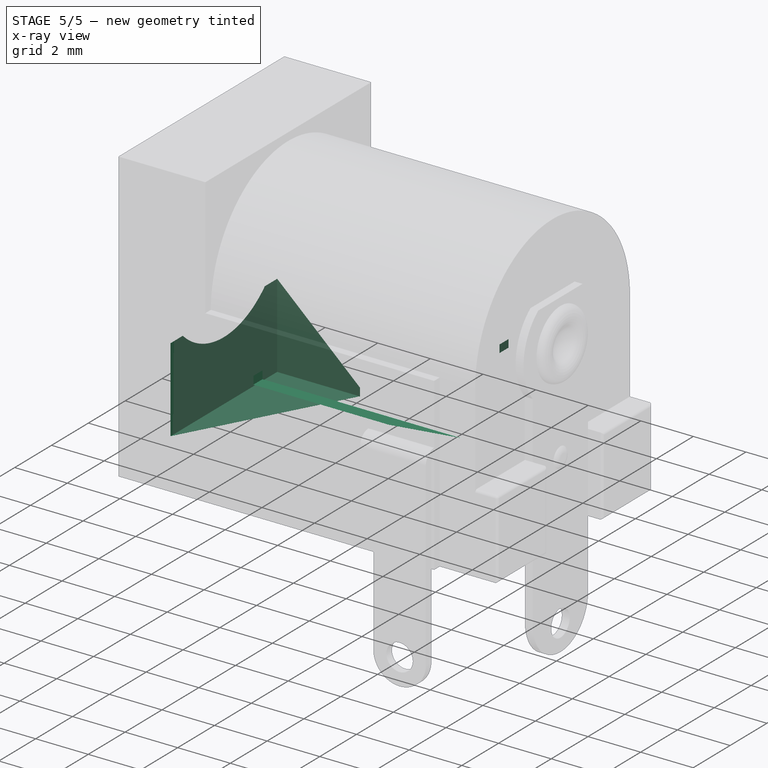
[diagram: stage 5 of 5 — x-ray composite at the iso view; earlier geometry ghosted, this stage's added geometry solid]
FEATURE [Sketcher::SketchObject] Sketch034
  FullyConstrained = true
  MapMode = 5
  Placement = pos=(0,0,0) rot=(0.57735,0.57735,0.57735;2.0944rad)
  Support = -> [YZ_Plane019]
  sketch-geometry (4):
    g0: LineSegment StartX=-2.9 StartY=4.7 StartZ=0 EndX=2.9 EndY=4.7 EndZ=0
    g1: LineSegment StartX=2.9 StartY=4.7 StartZ=0 EndX=2.9 EndY=1.5 EndZ=0
    g2: LineSegment StartX=2.9 StartY=1.5 StartZ=0 EndX=-2.9 EndY=1.5 EndZ=0
    g3: LineSegment StartX=-2.9 StartY=1.5 StartZ=0 EndX=-2.9 EndY=4.7 EndZ=0
  constraints (11):
    c: Coincident(g0,g1)
    c: Coincident(g1,g2)
    c: Coincident(g2,g3)
    c: Coincident(g3,g0)
    c: Horizontal(g0)
    c: Vertical(g1)
    c: Vertical(g3)
    c: DistanceY(g1,g1) = 3.2
    c: DistanceY(g1) = 1.5
    c: Symmetric(g2,g1,g-2)
    c: DistanceX(g2,g2) = 5.8
FEATURE [PartDesign::Pocket] Pocket008
  BaseFeature = -> Pocket007
  Direction = (-1,2e-16,-3e-16)
  Length = 12.65
  Length2 = 5
  Placement = pos=(0,0,0) rot=(0.57735,0.57735,0.57735;2.0944rad)
  Profile = -> Sketch034
  ReferenceAxis = -> Sketch034 [N_Axis]
  Type = 0
FEATURE [Sketcher::SketchObject] Sketch035
  FullyConstrained = true
  MapMode = 5
  Placement = pos=(0,0,0) rot=(0.57735,0.57735,0.57735;2.0944rad)
  Support = -> [YZ_Plane019]
  sketch-geometry (4):
    g0: LineSegment StartX=-3.4 StartY=4.7 StartZ=0 EndX=0 EndY=4.7 EndZ=0
    g1: LineSegment StartX=0 StartY=4.7 StartZ=0 EndX=0 EndY=4.4 EndZ=0
    g2: LineSegment StartX=0 StartY=4.4 StartZ=0 EndX=-3.4 EndY=4.4 EndZ=0
    g3: LineSegment StartX=-3.4 StartY=4.4 StartZ=0 EndX=-3.4 EndY=4.7 EndZ=0
  constraints (12):
    c: Coincident(g0,g1)
    c: Coincident(g1,g2)
    c: Coincident(g2,g3)
    c: Coincident(g3,g0)
    c: Horizontal(g0)
    c: Horizontal(g2)
    c: Vertical(g1)
    c: Vertical(g3)
    c: DistanceY(g0) = 4.7
    c: DistanceY(g3,g3) = 0.3
    c: DistanceX(g2) = -3.4
    c: PointOnObject(g1,g-2)
FEATURE [PartDesign::Pocket] Pocket009
  BaseFeature = -> Pocket008
  Direction = (-1,2e-16,-3e-16)
  Length = 9.15
  Length2 = 5
  Placement = pos=(0,0,0) rot=(0.57735,0.57735,0.57735;2.0944rad)
  Profile = -> Sketch035
  ReferenceAxis = -> Sketch035 [N_Axis]
  Type = 0
FEATURE [Sketcher::SketchObject] Sketch036
  FullyConstrained = true
  MapMode = 5
  Placement = pos=(0,0,0) rot=(0.57735,0.57735,0.57735;2.0944rad)
  Support = -> [YZ_Plane019]
  sketch-geometry (4):
    g0: LineSegment StartX=0 StartY=4.7 StartZ=0 EndX=3.4 EndY=4.7 EndZ=0
    g1: LineSegment StartX=3.4 StartY=4.7 StartZ=0 EndX=3.4 EndY=4.4 EndZ=0
    g2: LineSegment StartX=3.4 StartY=4.4 StartZ=0 EndX=0 EndY=4.4 EndZ=0
    g3: LineSegment StartX=0 StartY=4.4 StartZ=0 EndX=0 EndY=4.7 EndZ=0
  constraints (12):
    c: Coincident(g0,g1)
    c: Coincident(g1,g2)
    c: Coincident(g2,g3)
    c: Coincident(g3,g0)
    c: Horizontal(g0)
    c: Horizontal(g2)
    c: Vertical(g1)
    c: Vertical(g3)
    c: PointOnObject(g0,g-2)
    c: DistanceY(g0) = 4.7
    c: DistanceY(g3,g3) = 0.3
    c: DistanceX(g0,g0) = 3.4
FEATURE [PartDesign::Pocket] Pocket010
  BaseFeature = -> Pocket009
  Direction = (-1,2e-16,-3e-16)
  Length = 4.2
  Length2 = 5
  Placement = pos=(0,0,0) rot=(0.57735,0.57735,0.57735;2.0944rad)
  Profile = -> Sketch036
  ReferenceAxis = -> Sketch036 [N_Axis]
  Type = 0
FEATURE [Sketcher::SketchObject] Sketch037
  FullyConstrained = true
  MapMode = 5
  Placement = pos=(0,0,0) rot=(0.57735,0.57735,0.57735;2.0944rad)
  Support = -> [YZ_Plane019]
  sketch-geometry (4):
    g0: LineSegment StartX=-4.6 StartY=4.7 StartZ=0 EndX=0 EndY=4.7 EndZ=0
    g1: LineSegment StartX=0 StartY=4.7 StartZ=0 EndX=0 EndY=4.4 EndZ=0
    g2: LineSegment StartX=0 StartY=4.4 StartZ=0 EndX=-4.6 EndY=4.4 EndZ=0
    g3: LineSegment StartX=-4.6 StartY=4.4 StartZ=0 EndX=-4.6 EndY=4.7 EndZ=0
  constraints (12):
    c: Coincident(g0,g1)
    c: Coincident(g1,g2)
    c: Coincident(g2,g3)
    c: Coincident(g3,g0)
    c: Horizontal(g0)
    c: Horizontal(g2)
    c: Vertical(g1)
    c: Vertical(g3)
    c: DistanceY(g3,g3) = 0.3
    c: PointOnObject(g0,g-2)
    c: DistanceX(g0,g0) = 4.6
    c: DistanceY(g0) = 4.7
FEATURE [PartDesign::Pocket] Pocket011
  BaseFeature = -> Pocket010
  Direction = (-1,2e-16,-3e-16)
  Length = 4
  Length2 = 5
  Placement = pos=(0,0,0) rot=(0.57735,0.57735,0.57735;2.0944rad)
  Profile = -> Sketch037
  ReferenceAxis = -> Sketch037 [N_Axis]
  Type = 0
FEATURE [Sketcher::SketchObject] Sketch038
  FullyConstrained = true
  MapMode = 5
  Placement = pos=(0,0,0) rot=(0.57735,0.57735,0.57735;2.0944rad)
  Support = -> [YZ_Plane019]
  sketch-geometry (4):
    g0: LineSegment StartX=-1 StartY=1.5 StartZ=0 EndX=1 EndY=1.5 EndZ=0
    g1: LineSegment StartX=1 StartY=1.5 StartZ=0 EndX=1 EndY=0.5 EndZ=0
    g2: LineSegment StartX=1 StartY=0.5 StartZ=0 EndX=-1 EndY=0.5 EndZ=0
    g3: LineSegment StartX=-1 StartY=0.5 StartZ=0 EndX=-1 EndY=1.5 EndZ=0
  constraints (11):
    c: Coincident(g0,g1)
    c: Coincident(g1,g2)
    c: Coincident(g2,g3)
    c: Coincident(g3,g0)
    c: Horizontal(g0)
    c: Vertical(g1)
    c: Vertical(g3)
    c: DistanceY(g1) = 0.5
    c: DistanceY(g1,g1) = 1
    c: Symmetric(g2,g1,g-2)
    c: DistanceX(g0,g0) = 2
FEATURE [PartDesign::Pocket] Pocket012
  BaseFeature = -> Pocket011
  Direction = (-1,2e-16,-3e-16)
  Length = 6.15
  Length2 = 5
  Placement = pos=(0,0,0) rot=(0.57735,0.57735,0.57735;2.0944rad)
  Profile = -> Sketch038
  ReferenceAxis = -> Sketch038 [N_Axis]
  Refine = true
  Type = 0
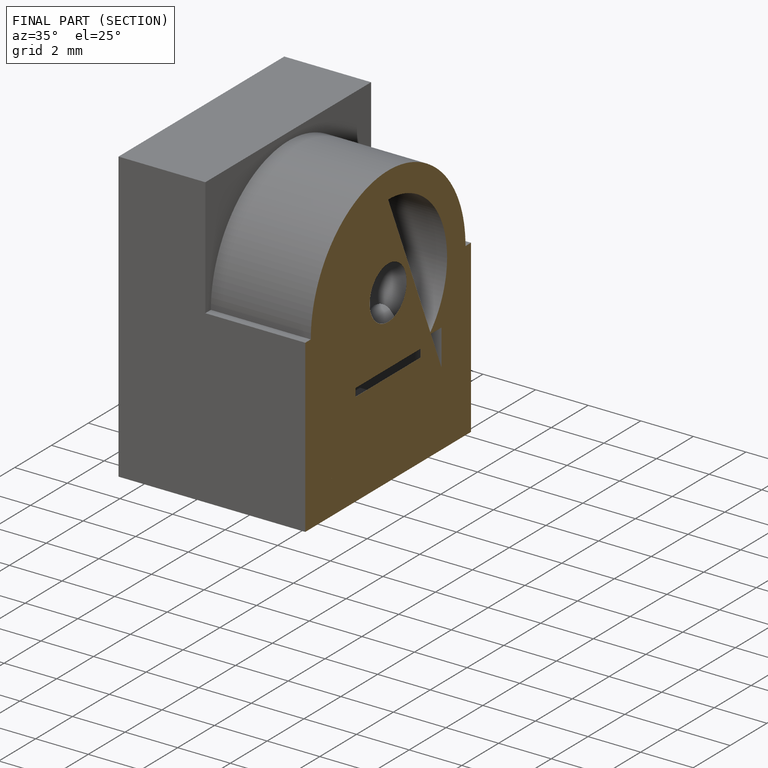
[diagram: finished part — half-section view (interior)]
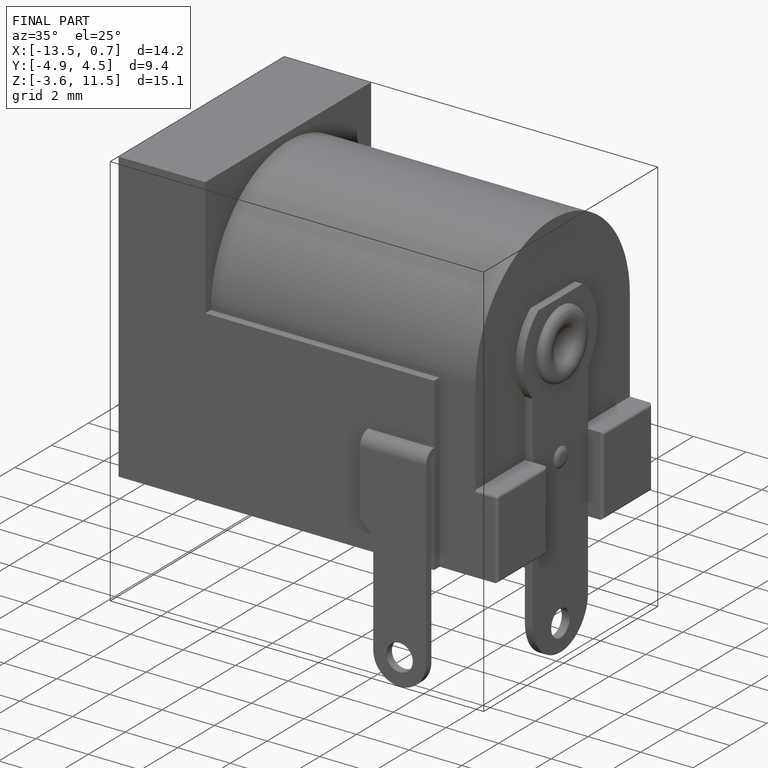
[diagram: finished part — iso view with bounding-box wireframe]
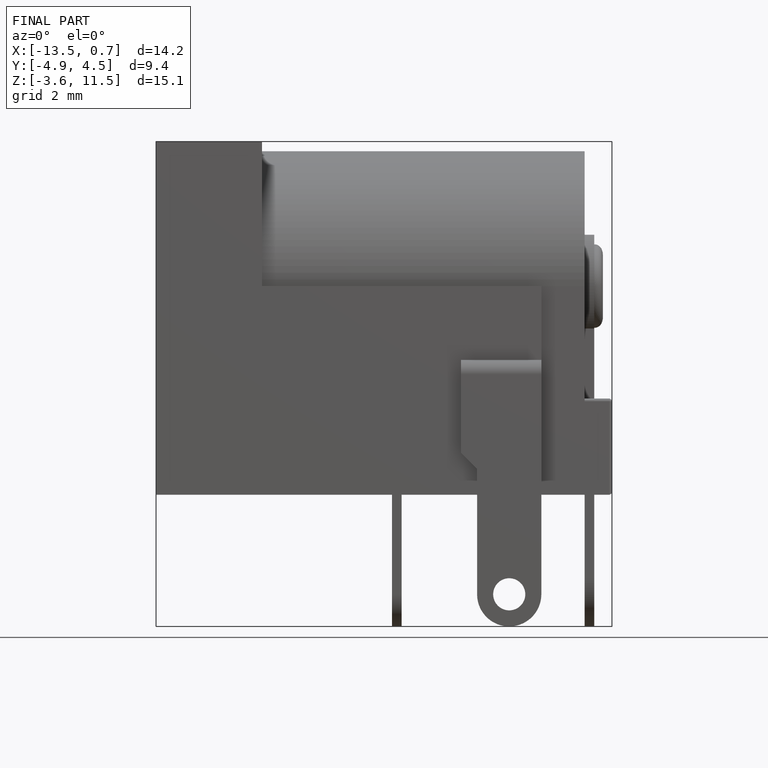
[diagram: finished part — front view with bounding-box wireframe]
